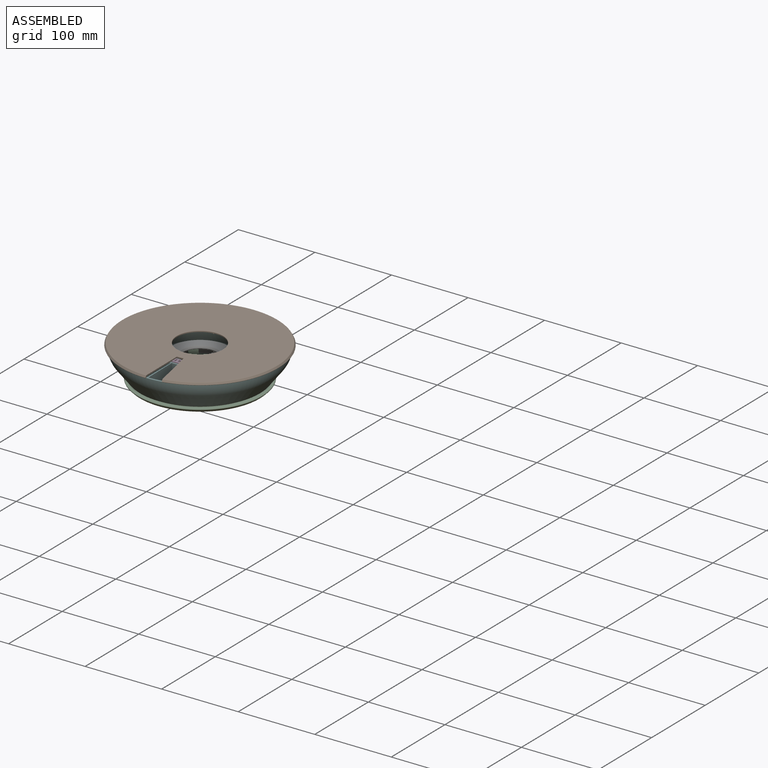
[diagram: assembled view]
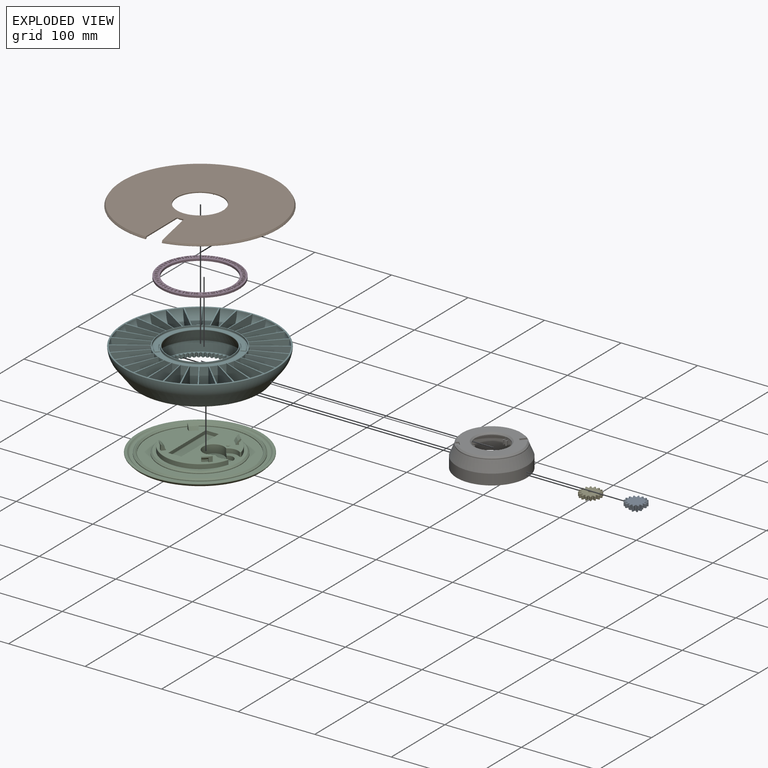
[diagram: exploded view]
FCSTD DOCUMENT  (FreeCAD 1.0R39319 (Git))
Label: smart_medication_box_v3
License: All rights reserved
LicenseURL: https://en.wikipedia.org/wiki/All_rights_reserved
objects: Sketcher::SketchObject×31, PartDesign::Fillet×17, PartDesign::Pad×11, PartDesign::Pocket×10, PartDesign::PolarPattern×10, PartDesign::Revolution×9, App::Link×8, PartDesign::Body×8, PartDesign::Chamfer×3, App::VarSet×3, App::FeaturePython×3, PartDesign::FeaturePython×2, Part::FeaturePython×2, PartDesign::Plane×2, PartDesign::FeatureBase×1, PartDesign::Boolean×1, TechDraw::DrawSVGTemplate×1, TechDraw::DrawViewImage×1, TechDraw::DrawViewClip×1, TechDraw::DrawPage×1, +3 more types
note: 252 computed .brp shape members not serialized (recipe doc carries the construction recipe); baked Part::Feature solids carry a one-line shape summary decoded from their .brp

FEATURE [App::Link] Body006  label="base"
  LinkedObject = -> Body003
FEATURE [App::Link] Body019  label="middle_gear"
  LinkPlacement = pos=(36,9.04337e-05,57) rot=(1,0,0;3.14159rad)
  LinkedObject = -> Body018
  Placement = pos=(36,9.04337e-05,57) rot=(1,0,0;3.14159rad)
FEATURE [PartDesign::FeaturePython] InternalInvoluteGear  # WARN: FeaturePython — macro-defined, semantics opaque (R4)
  AttacherType = Attacher::AttachEngine3D
  Suppressed = false
  addendum_diameter = 94.2
  angular_backlash = 0
  backlash = 0
  clearance = 0.2
  double_helix = false
  head = -0.4
  head_fillet = 0
  height = 5
  helix_angle = 0
  module = 1.5
  num_teeth = 64
  numpoints = 20
  outside_diameter = 106
  pitch_diameter = 96
  pressure_angle = 20
  properties_from_tool = false
  reversed_backlash = false
  root_diameter = 99.6
  root_fillet = 0
  shift = 0
  simple = false
  thickness = 5
  transverse_pitch = 4.71239
  version = 1.3.0
  expr: angular_backlash = backlash / pitch_diameter * 360 ° / pi
  expr: clearance = 0.2
  expr: module = 1.5
  expr: num_teeth = 64
  expr: pressure_angle = 20
FEATURE [PartDesign::FeaturePython] InvoluteGear001  # WARN: FeaturePython — macro-defined, semantics opaque (R4)
  AttacherType = Attacher::AttachEngine3D
  Suppressed = false
  addendum_diameter = 27
  angular_backlash = 0
  axle_hole = false
  axle_holesize = 10
  backlash = 0
  clearance = 0.25
  double_helix = false
  head = 0
  head_fillet = 0
  height = 5
  helix_angle = 0
  module = 1.5
  num_teeth = 16
  numpoints = 20
  offset_hole = false
  offset_holeoffset = 10
  offset_holesize = 10
  pitch_diameter = 24
  pressure_angle = 20
  properties_from_tool = false
  reversed_backlash = false
  root_diameter = 20.25
  root_fillet = 0
  shift = 0
  simple = false
  transverse_pitch = 4.71239
  traverse_module = 1.5
  undercut = false
  version = 1.3.0
  expr: angular_backlash = backlash / pitch_diameter * 360 ° / pi
  expr: module = 1.5
  expr: num_teeth = 16
FEATURE [Part::FeaturePython] InvoluteGear002  # WARN: FeaturePython — macro-defined, semantics opaque (R4)
  AttacherType = Attacher::AttachEngine3D
  Placement = pos=(0,0,46) rot=(0,0,1;0rad)
  addendum_diameter = 27
  angular_backlash = 0
  axle_hole = false
  axle_holesize = 10
  backlash = 0
  clearance = 0.25
  double_helix = false
  head = 0
  head_fillet = 0
  height = 5
  helix_angle = 0
  module = 1.5
  num_teeth = 16
  numpoints = 20
  offset_hole = false
  offset_holeoffset = 10
  offset_holesize = 10
  pitch_diameter = 24
  pressure_angle = 20
  properties_from_tool = false
  reversed_backlash = false
  root_diameter = 20.25
  root_fillet = 0
  shift = 0
  simple = false
  transverse_pitch = 4.71239
  traverse_module = 1.5
  undercut = false
  version = 1.3.0
  expr: angular_backlash = backlash / pitch_diameter * 360 ° / pi
  expr: module = 1.5
FEATURE [PartDesign::FeatureBase] BaseFeature002
  BaseFeature = -> InvoluteGear002
  Suppressed = false
FEATURE [PartDesign::Body] Body017
  AllowCompound = false
  BaseFeature = -> InvoluteGear002
  Group = -> [BaseFeature002]
  Origin = -> Origin028
  Placement = pos=(0,0,46) rot=(0,0,1;0rad)
  Tip = -> BaseFeature002
FEATURE [Part::FeaturePython] InvoluteGear003  # WARN: FeaturePython — macro-defined, semantics opaque (R4)
  AttacherType = Attacher::AttachEngine3D
  Placement = pos=(0,0,51) rot=(0,0,1;0rad)
  addendum_diameter = 15
  angular_backlash = 0
  axle_hole = false
  axle_holesize = 10
  backlash = 0
  clearance = 0.25
  double_helix = false
  head = 0
  head_fillet = 0
  height = 5
  helix_angle = 0
  module = 1.5
  num_teeth = 8
  numpoints = 20
  offset_hole = false
  offset_holeoffset = 10
  offset_holesize = 10
  pitch_diameter = 12
  pressure_angle = 20
  properties_from_tool = false
  reversed_backlash = false
  root_diameter = 8.25
  root_fillet = 0
  shift = 0
  simple = false
  transverse_pitch = 4.71239
  traverse_module = 1.5
  undercut = false
  version = 1.3.0
  expr: angular_backlash = backlash / pitch_diameter * 360 ° / pi
  expr: module = 1.5
  expr: num_teeth = 8
FEATURE [PartDesign::Boolean] Boolean
  Group = -> [InvoluteGear003,InvoluteGear002,Body017]
  Refine = true
  Suppressed = false
  Type = 0
  UsePlacement = true
FEATURE [PartDesign::Fillet] Fillet001
  Base = -> Boolean [Face4]
  BaseFeature = -> Boolean
  Radius = 0.25
  Refine = true
  SupportTransform = false
  Suppressed = false
  UseAllEdges = false
  expr: Radius = 0.25
FEATURE [PartDesign::Fillet] Fillet002
  Base = -> Fillet001 [Face4,Face243]
  BaseFeature = -> Fillet001
  Radius = 0.2
  Refine = true
  SupportTransform = false
  Suppressed = false
  UseAllEdges = false
  expr: Radius = 0.2
FEATURE [Sketcher::SketchObject] Sketch003
  ArcFitTolerance = 1e-06
  AttachmentSupport = -> [Origin006]
  FullyConstrained = true
  MakeInternals = false
  expr: Constraints[0] = 53 * 2
  sketch-geometry (1):
    g0: Circle CenterX=0 CenterY=0 CenterZ=0 NormalX=0 NormalY=0 NormalZ=1 AngleXU=0 Radius=53
  constraints (2):
    c: Diameter(g0) = 106
    c: Coincident(g0,g-1)
FEATURE [PartDesign::Pad] Pad
  Direction = (0,0,1)
  Length = 6
  Length2 = 10
  Profile = -> Sketch003
  ReferenceAxis = -> Sketch003 [N_Axis]
  Refine = true
  Suppressed = false
  Type = 0
  expr: Length = 6
FEATURE [Sketcher::SketchObject] Sketch004
  ArcFitTolerance = 1e-06
  AttachmentSupport = -> [Pad]
  FullyConstrained = true
  MakeInternals = false
  MapMode = 5
  Placement = pos=(0,0,6) rot=(0,0,1;0rad)
  expr: Constraints[0] = 48 * 2 - 2
  sketch-geometry (1):
    g0: Circle CenterX=0 CenterY=0 CenterZ=0 NormalX=0 NormalY=0 NormalZ=1 AngleXU=0 Radius=47
  constraints (2):
    c: Diameter(g0) = 94
    c: Coincident(g0,g-1)
FEATURE [PartDesign::Pad] Pad001
  BaseFeature = -> Pad
  Direction = (0,0,1)
  Length = 6
  Length2 = 10
  Profile = -> Sketch004
  ReferenceAxis = -> Sketch004 [N_Axis]
  Refine = true
  Suppressed = false
  Type = 0
  expr: Length = 6
FEATURE [Sketcher::SketchObject] Sketch005
  ArcFitTolerance = 1e-06
  AttachmentSupport = -> [Pad001]
  ExternalGeometry = -> [Pad001]
  FullyConstrained = true
  MakeInternals = false
  MapMode = 5
  Placement = pos=(0,0,12) rot=(0,0,1;0rad)
  expr: Constraints[0] = 27.5
  expr: Constraints[4] = 11
  sketch-geometry (2):
    g0: Circle CenterX=36 CenterY=0 CenterZ=0 NormalX=0 NormalY=0 NormalZ=1 AngleXU=0 Radius=13.75
    g1: Circle [constr] CenterX=36 CenterY=0 CenterZ=0 NormalX=0 NormalY=0 NormalZ=1 AngleXU=0 Radius=11
  constraints (5):
    c: Diameter(g0) = 27.5
    c: Coincident(g1,g0)
    c: Tangent(g1,g-3)
    c: PointOnObject(g0,g-1)
    c: Distance(g0,g-3) = 11
FEATURE [PartDesign::Pocket] Pocket001
  BaseFeature = -> Pad001
  Direction = (0,0,-1)
  Length = 6
  Length2 = 5
  Profile = -> Sketch005
  ReferenceAxis = -> Sketch005 [N_Axis]
  Refine = true
  Suppressed = false
  Type = 0
  expr: Length = 6
FEATURE [Sketcher::SketchObject] Sketch006
  ArcFitTolerance = 1e-06
  AttachmentSupport = -> [Pocket001]
  ExternalGeometry = -> [Pocket001]
  FullyConstrained = true
  MakeInternals = false
  MapMode = 5
  Placement = pos=(0,0,6) rot=(0,0,1;0rad)
  sketch-geometry (1):
    g0: Circle CenterX=36 CenterY=0 CenterZ=0 NormalX=0 NormalY=0 NormalZ=1 AngleXU=0 Radius=7.6
  constraints (2):
    c: Diameter(g0) = 15.2
    c: Coincident(g0,g-4)
FEATURE [PartDesign::Pocket] Pocket002
  BaseFeature = -> Pocket001
  Direction = (0,0,-1)
  Length = 5
  Length2 = 5
  Profile = -> Sketch006
  ReferenceAxis = -> Sketch006 [N_Axis]
  Refine = true
  Suppressed = false
  Type = 0
FEATURE [Sketcher::SketchObject] Sketch007
  ArcFitTolerance = 1e-06
  AttachmentSupport = -> [Pocket002]
  ExternalGeometry = -> [Pocket002]
  FullyConstrained = true
  MakeInternals = false
  MapMode = 5
  Placement = pos=(0,0,12) rot=(0,0,1;0rad)
  expr: Constraints[0] = 27.5
  expr: Constraints[2] = -3.1
  sketch-geometry (1):
    g0: Circle CenterX=17.75 CenterY=0 CenterZ=0 NormalX=0 NormalY=0 NormalZ=1 AngleXU=0 Radius=13.75
  constraints (3):
    c: Diameter(g0) = 27.5
    c: PointOnObject(g0,g-1)
    c: Distance(g0,g-3) = -3.1
FEATURE [PartDesign::Pocket] Pocket003
  BaseFeature = -> Pocket002
  Direction = (0,0,-1)
  Length = 11
  Length2 = 5
  Profile = -> Sketch007
  ReferenceAxis = -> Sketch007 [N_Axis]
  Refine = true
  Suppressed = false
  Type = 0
  expr: Length = 11
FEATURE [Sketcher::SketchObject] Sketch008
  ArcFitTolerance = 1e-06
  AttachmentSupport = -> [InvoluteGear001]
  FullyConstrained = true
  MakeInternals = false
  MapMode = 5
  Placement = pos=(0,0,5) rot=(0,0,1;0rad)
  expr: Constraints[11] = 3.1
  sketch-geometry (4):
    g0: ArcOfCircle CenterX=0 CenterY=0 CenterZ=0 NormalX=0 NormalY=0 NormalZ=1 AngleXU=0 Radius=2.5 StartAngle=2.47285 EndAngle=3.81034
    g1: ArcOfCircle CenterX=0 CenterY=0 CenterZ=0 NormalX=0 NormalY=0 NormalZ=1 AngleXU=0 Radius=2.5 StartAngle=5.61444 EndAngle=6.95193
    g2: LineSegment StartX=-1.9615 StartY=1.55 StartZ=0 EndX=1.9615 EndY=1.55 EndZ=0
    g3: LineSegment StartX=1.9615 StartY=-1.55 StartZ=0 EndX=-1.9615 EndY=-1.55 EndZ=0
  constraints (12):
    c: Coincident(g0,g-1)
    c: Coincident(g0,g1)
    c: Diameter(g0) = 5
    c: Equal(g1,g0)
    c: Coincident(g2,g0)
    c: Coincident(g2,g1)
    c: Coincident(g3,g1)
    c: Coincident(g3,g0)
    c: Parallel(g3,g2)
    c: Parallel(g-1,g2)
    c: Equal(g2,g3)
    c: Distance(g3,g2) = 3.1
FEATURE [PartDesign::Pocket] Pocket004
  BaseFeature = -> InvoluteGear001
  Direction = (0,0,-1)
  Length = 5
  Length2 = 5
  Profile = -> Sketch008
  ReferenceAxis = -> Sketch008 [N_Axis]
  Refine = true
  Suppressed = false
  Type = 0
FEATURE [PartDesign::Fillet] Fillet012
  Base = -> Pocket004 [Face5,Face4]
  BaseFeature = -> Pocket004
  Radius = 0.25
  Refine = true
  SupportTransform = false
  Suppressed = false
  UseAllEdges = false
  expr: Radius = 0.25
FEATURE [PartDesign::Body] Body005  label="motor_gear001"
  AllowCompound = false
  Group = -> [InvoluteGear001,Sketch008,Pocket004,Fillet012]
  Origin = -> Origin010
  Placement = pos=(0,0,75) rot=(0,0,1;0rad)
  Tip = -> Fillet012
FEATURE [Sketcher::SketchObject] Sketch009
  ArcFitTolerance = 1e-06
  FullyConstrained = false
  MakeInternals = false
  MapMode = 5
  Placement = pos=(53,0,0) rot=(1,0,0;1.5708rad)
  expr: Constraints[0] = 23
  sketch-geometry (13):
    g0: LineSegment StartX=0 StartY=3 StartZ=0 EndX=21.9645 EndY=3 EndZ=0
    g1: LineSegment StartX=23.7322 StartY=3.73223 StartZ=0 EndX=24.7071 EndY=4.70711 EndZ=0
    g2: LineSegment StartX=25.4142 StartY=5 StartZ=0 EndX=27.4142 EndY=5 EndZ=0
    g3: LineSegment StartX=28.1213 StartY=3.29289 StartZ=0 EndX=25.5607 EndY=0.732233 EndZ=0
    g4: LineSegment StartX=0 StartY=0 StartZ=0 EndX=23.7929 EndY=0 EndZ=0
    g5: ArcOfCircle CenterX=27.4142 CenterY=4 CenterZ=0 NormalX=0 NormalY=0 NormalZ=1 AngleXU=0 Radius=1 StartAngle=5.49779 EndAngle=7.85398
    g6: ArcOfCircle CenterX=25.4142 CenterY=4 CenterZ=0 NormalX=0 NormalY=0 NormalZ=1 AngleXU=0 Radius=1 StartAngle=1.5708 EndAngle=2.35619
    g7: GeomPoint [constr] X=25 Y=5 Z=0
    g8: ArcOfCircle CenterX=21.9645 CenterY=5.5 CenterZ=0 NormalX=0 NormalY=0 NormalZ=1 AngleXU=0 Radius=2.5 StartAngle=4.71239 EndAngle=5.49779
    g9: GeomPoint [constr] X=23 Y=3 Z=0
    g10: ArcOfCircle CenterX=23.7929 CenterY=2.5 CenterZ=0 NormalX=0 NormalY=0 NormalZ=1 AngleXU=0 Radius=2.5 StartAngle=4.71239 EndAngle=5.49779
    g11: GeomPoint [constr] X=24.8284 Y=0 Z=0
    g12: LineSegment StartX=0 StartY=0 StartZ=0 EndX=0 EndY=3 EndZ=0
  constraints (29):
    c: DistanceX(g0,g9) = 23
    c: PointOnObject(g11,g-1)
    c: Parallel(g1,g3)
    c: Parallel(g0,g4)
    c: Parallel(g2,g0)
    c: Tangent(g2,g5) = 1.5708
    c: PointOnObject(g7,g1)
    c: PointOnObject(g7,g2)
    c: Tangent(g1,g6) = 1.5708
    c: Tangent(g2,g6) = 1.5708
    c: PointOnObject(g9,g1)
    c: PointOnObject(g9,g0)
    c: Tangent(g1,g8) = -1.5708
    c: Tangent(g0,g8) = -1.5708
    c: PointOnObject(g11,g3)
    c: PointOnObject(g11,g4)
    c: Tangent(g3,g10) = 1.5708
    c: Tangent(g4,g10) = -1.5708
    c: Equal(g5,g6)
    c: Radius(g6) = 1
    c: Equal(g8,g10)
    c: Radius(g10) = 2.5
    c: Tangent(g3,g5) = 1.5708
    c: Angle(g-1,g3) = 0.785398
    c: DistanceX(g2,g2) = 2
    c: Coincident(g12,g4)
    c: Coincident(g12,g0)
    c: Vertical(g12)
    c: DistanceY(g12,g12) = 3
FEATURE [PartDesign::Revolution] Revolution
  Angle = 360
  Angle2 = 60
  Axis = (1e-16,1e-16,1)
  Base = (0,0,0)
  BaseFeature = -> Pocket003
  Profile = -> Sketch009
  ReferenceAxis = -> Z_Axis003
  Refine = true
  Reversed = true
  Suppressed = false
  Type = 0
FEATURE [PartDesign::Fillet] Fillet
  Base = -> Revolution [Edge24,Edge22,Edge18,Edge25,Edge20,Edge16]
  BaseFeature = -> Revolution
  Radius = 1
  Refine = true
  SupportTransform = false
  Suppressed = false
  UseAllEdges = false
FEATURE [Sketcher::SketchObject] Sketch010
  ArcFitTolerance = 1e-06
  ExternalGeometry = -> [InternalInvoluteGear]
  FullyConstrained = false
  MakeInternals = false
  MapMode = 5
  Placement = pos=(53,0,0) rot=(1,0,0;1.5708rad)
  expr: Constraints[10] = VarSet.outer_wall_thickness
  expr: Constraints[11] = VarSet.outer_wall_thickness
  expr: Constraints[14] = VarSet.outer_wall_thickness
  expr: Constraints[17] = VarSet.fillet_oouter_gear
  expr: Constraints[2] = 5
  expr: Constraints[34] = VarSet.outer_wall_thickness
  expr: Constraints[36] = VarSet.outer_ring_height
  expr: Constraints[37] = VarSet.fillet_oouter_gear
  expr: Constraints[38] = 30
  expr: Constraints[45] = VarSet.fillet_oouter_gear
  expr: Constraints[50] = 50
  expr: Constraints[52] = 10
  expr: Constraints[6] = 25
  expr: Constraints[9] = VarSet.outer_wall_thickness
  sketch-geometry (28):
    g0: LineSegment StartX=0 StartY=0 StartZ=0 EndX=0 EndY=5 EndZ=0
    g1: LineSegment StartX=0 StartY=0 StartZ=0 EndX=24.1018 EndY=0 EndZ=0
    g2: LineSegment StartX=25.5967 StartY=0.67138 StartZ=0 EndX=34.1854 EndY=10.3351 EndZ=0
    g3: LineSegment StartX=24.6985 StartY=2.67138 StartZ=0 EndX=32.6905 EndY=11.6638 EndZ=0
    g4: LineSegment StartX=9.57963 StartY=2 StartZ=0 EndX=23.2036 EndY=2 EndZ=0
    g5: LineSegment StartX=0 StartY=5 StartZ=0 EndX=-2 EndY=5 EndZ=0
    g6: LineSegment StartX=-0.122418 StartY=35.2036 StartZ=0 EndX=0 EndY=7.67973 EndZ=0
    g7: LineSegment StartX=8.57963 StartY=2.26795 StartZ=0 EndX=0.399992 EndY=6.99046 EndZ=0
    g8: ArcOfCircle CenterX=0.799992 CenterY=7.68328 CenterZ=0 NormalX=0 NormalY=0 NormalZ=1 AngleXU=0 Radius=0.8 StartAngle=3.14604 EndAngle=4.18879
    g9: ArcOfCircle CenterX=9.57963 CenterY=4 CenterZ=0 NormalX=0 NormalY=0 NormalZ=1 AngleXU=0 Radius=2 StartAngle=4.18879 EndAngle=4.71239
    g10: GeomPoint [constr] X=9.04373 Y=2 Z=0
    g11: ArcOfCircle CenterX=23.2036 CenterY=4 CenterZ=0 NormalX=0 NormalY=0 NormalZ=1 AngleXU=0 Radius=2 StartAngle=4.71239 EndAngle=5.55662
    g12: GeomPoint [constr] X=24.1018 Y=2 Z=0
    g13: ArcOfCircle CenterX=24.1018 CenterY=2 CenterZ=0 NormalX=0 NormalY=0 NormalZ=1 AngleXU=0 Radius=2 StartAngle=4.71239 EndAngle=5.55662
    g14: GeomPoint [constr] X=25 Y=0 Z=0
    g15: GeomPoint [constr] X=29 Y=4.50065 Z=0
    g16: GeomPoint [constr] X=27 Y=5.26097 Z=0
    g17: ArcOfCircle CenterX=-0.92241 CenterY=35.2 CenterZ=0 NormalX=0 NormalY=0 NormalZ=1 AngleXU=0 Radius=0.8 StartAngle=0.00444768 EndAngle=1.5708
    g18: LineSegment StartX=-10.9224 StartY=36 StartZ=0 EndX=-5.92241 EndY=36 EndZ=0
    g19: ArcOfCircle CenterX=-4.68233 CenterY=44.8792 CenterZ=0 NormalX=0 NormalY=0 NormalZ=1 AngleXU=0 Radius=52 StartAngle=5.55662 EndAngle=6.09299
    g20: ArcOfCircle CenterX=-4.68233 CenterY=44.8792 CenterZ=0 NormalX=0 NormalY=0 NormalZ=1 AngleXU=0 Radius=50 StartAngle=5.55662 EndAngle=6.09148
    g21: ArcOfCircle CenterX=45.187 CenterY=35.2 CenterZ=0 NormalX=0 NormalY=0 NormalZ=1 AngleXU=0 Radius=0.8 StartAngle=1.5708 EndAngle=2.94988
    g22: LineSegment StartX=45.5944 StartY=36 StartZ=0 EndX=45.187 EndY=36 EndZ=0
    g23: ArcOfCircle CenterX=45.5944 CenterY=35.2 CenterZ=0 NormalX=0 NormalY=0 NormalZ=1 AngleXU=0 Radius=0.8 StartAngle=6.09299 EndAngle=7.85398
    g24: ArcOfCircle CenterX=-10.9224 CenterY=35.2 CenterZ=0 NormalX=0 NormalY=0 NormalZ=1 AngleXU=0 Radius=0.8 StartAngle=1.5708 EndAngle=3.66964
    g25: LineSegment StartX=-11.6134 StartY=34.7969 StartZ=0 EndX=-2.05968 EndY=18.418 EndZ=0
    g26: LineSegment StartX=-2.05968 StartY=18.418 StartZ=0 EndX=-2 EndY=5 EndZ=0
    g27: LineSegment StartX=-5.92241 StartY=36 StartZ=0 EndX=-0.92241 EndY=36 EndZ=0
  constraints (68):
    c: Coincident(g0,g-1)
    c: PointOnObject(g0,g-2)
    c: DistanceY(g0,g0) = 5
    c: Coincident(g1,g0)
    c: PointOnObject(g14,g-1)
    c: Parallel(g3,g2)
    c: DistanceX(g1,g14) = 25
    c: DistanceX(g14,g15) = 4
    c: Parallel(g4,g1)
    c: Distance(g1,g4) = 2
    c: DistanceX(g16,g15) = 2
    c: Distance(g14,g3) = 2
    c: Coincident(g5,g0)
    c: Horizontal(g5)
    c: DistanceX(g5,g5) = 2
    c: Tangent(g8,g7) = 1.5708
    c: Tangent(g8,g6) = -1.5708
    c: Radius(g8) = 0.8
    c: PointOnObject(g6,g-2)
    c: PointOnObject(g10,g7)
    c: PointOnObject(g10,g4)
    c: Tangent(g7,g9) = 1.5708
    c: Tangent(g4,g9) = -1.5708
    c: PointOnObject(g12,g4)
    c: PointOnObject(g12,g3)
    c: Tangent(g4,g11) = -1.5708
    c: Tangent(g3,g11) = -1.5708
    c: PointOnObject(g14,g1)
    c: PointOnObject(g14,g2)
    c: Tangent(g1,g13) = -1.5708
    c: Tangent(g2,g13) = -1.5708
    c: PointOnObject(g15,g2)
    c: PointOnObject(g16,g3)
    c: Equal(g13,g11)
    c: Distance(g0,g8) = 2
    c: Tangent(g17,g6) = 1.5708
    c: Distance(g18,g-1) = 36
    c: Radius(g17) = 0.8
    c: Angle(g7,g1) = 0.523599
    c: Equal(g11,g9)
    c: Coincident(g20,g19)
    c: Tangent(g20,g3) = -1.5708
    c: Tangent(g19,g2) = -1.5708
    c: Tangent(g22,g21) = -1.5708
    c: Tangent(g21,g20) = 1.5708
    c: Radius(g21) = 0.8
    c: Tangent(g23,g22) = -1.5708
    c: Tangent(g23,g19) = -1.5708
    c: Equal(g23,g21)
    c: Parallel(g22,g-1)
    c: Radius(g20) = 50
    c: Radius(g11) = 2
    c: DistanceX(g18,g27) = 10
    c: Tangent(g24,g18) = 1.5708
    c: Equal(g24,g17)
    c: Coincident(g26,g25)
    c: Coincident(g26,g5)
    c: Parallel(g26,g6)
    c: Tangent(g25,g24) = -1.5708
    c: Perpendicular(g-2,g18)
    c: Perpendicular(g-2,g27)
    c: Coincident(g18,g27)
    c: Tangent(g27,g17) = 1.5708
    c: Equal(g27,g18)
    c: Angle(g26,g25) = 0.523599
    c: Vertical(g18,g-3)
    c: Distance(g-1,g22) = 36
    c: DistanceX(g-1,g19) = 46.38
FEATURE [PartDesign::Revolution] Revolution001
  Angle = 360
  Angle2 = 60
  Axis = (1e-16,1e-16,1)
  Base = (0,0,0)
  BaseFeature = -> InternalInvoluteGear
  Profile = -> Sketch010
  ReferenceAxis = -> Z_Axis013
  Refine = true
  Reversed = true
  Suppressed = false
  Type = 0
FEATURE [Sketcher::SketchObject] Sketch011
  ArcFitTolerance = 1e-06
  ExternalGeometry = -> [Revolution001]
  FullyConstrained = true
  MakeInternals = false
  MapMode = 5
  Placement = pos=(53,0,0) rot=(1,0,0;1.5708rad)
  sketch-geometry (2):
    g0: LineSegment StartX=-0.92241 StartY=36 StartZ=0 EndX=45.187 EndY=36 EndZ=0
    g1: LineSegment StartX=9.57963 StartY=2 StartZ=0 EndX=23.2036 EndY=2 EndZ=0
  constraints (4):
    c: Coincident(g0,g-11)
    c: Coincident(g0,g-7)
    c: Tangent(g1,g-6) = -1.5708
    c: Coincident(g1,g-8)
FEATURE [PartDesign::Revolution] Revolution002
  Angle = 1
  Angle2 = 60
  Axis = (1e-16,1e-16,1)
  Base = (0,0,0)
  BaseFeature = -> Revolution001
  Midplane = true
  Profile = -> Sketch011
  ReferenceAxis = -> Z_Axis013
  Refine = true
  Suppressed = false
  Type = 0
  expr: Angle = 1
FEATURE [PartDesign::PolarPattern] PolarPattern
  Angle = 360
  Axis = -> Z_Axis013
  BaseFeature = -> Revolution002
  Mode = 0
  Occurrences = 32
  Offset = 120
  Originals = -> [Revolution002]
  Refine = true
  Suppressed = false
  TransformMode = 0
  expr: Occurrences = 32
FEATURE [Sketcher::SketchObject] Sketch012
  ArcFitTolerance = 1e-06
  AttacherType = Attacher::AttachEngine3D
  AttachmentSupport = -> [XY_Plane017]
  FullyConstrained = true
  MakeInternals = false
  MapMode = 5
  expr: Constraints[0] = 43
  expr: Constraints[2] = 80
  sketch-geometry (3):
    g0: Circle CenterX=0 CenterY=0 CenterZ=0 NormalX=0 NormalY=0 NormalZ=1 AngleXU=0 Radius=21.5
    g1: Circle CenterX=0 CenterY=0 CenterZ=0 NormalX=0 NormalY=0 NormalZ=1 AngleXU=0 Radius=40
    g2: Circle CenterX=0 CenterY=0 CenterZ=0 NormalX=0 NormalY=0 NormalZ=1 AngleXU=0 Radius=38.5
  constraints (6):
    c: Diameter(g0) = 43
    c: Coincident(g0,g-1)
    c: Diameter(g1) = 80
    c: Coincident(g1,g0)
    c: Coincident(g2,g0)
    c: Diameter(g2) = 77
FEATURE [PartDesign::Pad] Pad005
  Direction = (0,0,1)
  Length = 3
  Length2 = 10
  Profile = -> Sketch012 [Edge2,Edge1]
  ReferenceAxis = -> Sketch012 [N_Axis]
  Refine = true
  Suppressed = false
  Type = 0
  expr: Length = 3
FEATURE [Sketcher::SketchObject] Sketch015
  ArcFitTolerance = 1e-06
  AttachmentSupport = -> [PolarPattern]
  ExternalGeometry = -> [PolarPattern]
  FullyConstrained = true
  MakeInternals = false
  MapMode = 5
  Placement = pos=(4e-15,4e-15,36) rot=(0,0,1;0rad)
  expr: Constraints[13] = 9
  sketch-geometry (5):
    g0: Circle [constr] CenterX=0 CenterY=0 CenterZ=0 NormalX=0 NormalY=0 NormalZ=1 AngleXU=0 Radius=52.0776
    g1: Circle CenterX=0 CenterY=0 CenterZ=0 NormalX=0 NormalY=0 NormalZ=1 AngleXU=0 Radius=42.5776
    g2: Circle CenterX=0 CenterY=0 CenterZ=0 NormalX=0 NormalY=0 NormalZ=1 AngleXU=0 Radius=51.5776
    g3: LineSegment [constr] StartX=-42.5776 StartY=0 StartZ=0 EndX=-42.0776 EndY=0 EndZ=0
    g4: LineSegment [constr] StartX=-52.0776 StartY=0 StartZ=0 EndX=-51.5776 EndY=0 EndZ=0
  constraints (14):
    c: Coincident(g0,g-3)
    c: PointOnObject(g-4,g0)
    c: Coincident(g1,g0)
    c: Coincident(g2,g0)
    c: PointOnObject(g3,g1)
    c: PointOnObject(g3,g-3)
    c: PointOnObject(g3,g-1)
    c: PointOnObject(g3,g-1)
    c: PointOnObject(g4,g0)
    c: PointOnObject(g4,g2)
    c: PointOnObject(g4,g-1)
    c: PointOnObject(g4,g-1)
    c: Equal(g4,g3)
    c: Distance(g2,g1) = 9
FEATURE [PartDesign::Pocket] Pocket005
  BaseFeature = -> PolarPattern
  Direction = (0,0,-1)
  Length = 3
  Length2 = 5
  Profile = -> Sketch015
  ReferenceAxis = -> Sketch015 [N_Axis]
  Refine = true
  Suppressed = false
  Type = 0
  expr: Length = 3
FEATURE [PartDesign::Fillet] Fillet003
  Base = -> Pocket005 [Edge312,Edge949]
  BaseFeature = -> Pocket005
  Radius = 1
  Refine = true
  SupportTransform = false
  Suppressed = false
  UseAllEdges = false
  expr: Radius = 1
FEATURE [Sketcher::SketchObject] Sketch016
  ArcFitTolerance = 1e-06
  AttachmentSupport = -> [Fillet003]
  FullyConstrained = false
  MakeInternals = false
  MapMode = 5
  Placement = pos=(0,0,33) rot=(0,0,1;0rad)
  sketch-geometry (8):
    g0: ArcOfCircle CenterX=4e-15 CenterY=4e-15 CenterZ=0 NormalX=0 NormalY=0 NormalZ=1 AngleXU=0 Radius=44.0776 StartAngle=1.01451 EndAngle=1.42895
    g1: ArcOfCircle CenterX=4e-15 CenterY=4e-15 CenterZ=0 NormalX=0 NormalY=0 NormalZ=1 AngleXU=0 Radius=50.0776 StartAngle=1.01451 EndAngle=1.42895
    g2: LineSegment StartX=6.23147 StartY=43.6349 StartZ=0 EndX=7.07972 EndY=49.5746 EndZ=0
    g3: LineSegment StartX=23.2744 StartY=37.4318 StartZ=0 EndX=26.4426 EndY=42.5271 EndZ=0
    g4: LineSegment [constr] StartX=23.2744 StartY=37.4318 StartZ=0 EndX=23.0104 EndY=37.0071 EndZ=0
    g5: LineSegment [constr] StartX=26.4426 StartY=42.5271 StartZ=0 EndX=26.7066 EndY=42.9517 EndZ=0
    g6: LineSegment [constr] StartX=4e-15 StartY=4e-15 StartZ=0 EndX=-40.9495 EndY=14.9044 EndZ=0
    g7: LineSegment [constr] StartX=4e-15 StartY=4e-15 StartZ=0 EndX=14.9044 EndY=40.9495 EndZ=0
  constraints (22):
    c: Coincident(g0,g-4)
    c: Coincident(g1,g0)
    c: Coincident(g2,g0)
    c: Coincident(g2,g1)
    c: Coincident(g3,g0)
    c: Coincident(g3,g1)
    c: Equal(g2,g3)
    c: Perpendicular(g0,g2)
    c: Coincident(g4,g0)
    c: PointOnObject(g4,g-4)
    c: Coincident(g5,g1)
    c: PointOnObject(g5,g-3)
    c: Parallel(g4,g3)
    c: Parallel(g3,g5)
    c: Equal(g5,g4)
    c: Distance(g3,g3) = 6
    c: Coincident(g6,g0)
    c: Angle(g6,g-1) = 0.349066
    c: PointOnObject(g6,g-4)
    c: Coincident(g7,g0)
    c: Perpendicular(g6,g7)
    c: Equal(g7,g6)
FEATURE [PartDesign::Pad] Pad004
  BaseFeature = -> Fillet003
  Direction = (0,0,1)
  Length = 1.5
  Length2 = 10
  Profile = -> Sketch016
  ReferenceAxis = -> Sketch016 [N_Axis]
  Refine = true
  Suppressed = false
  Type = 0
  expr: Length = 1.5
FEATURE [PartDesign::PolarPattern] PolarPattern002
  Angle = 360
  Axis = -> Sketch016 [N_Axis]
  BaseFeature = -> Pad004
  Mode = 0
  Occurrences = 2
  Offset = 120
  Originals = -> [Pad004]
  Refine = true
  Suppressed = false
  TransformMode = 0
FEATURE [PartDesign::Fillet] Fillet004
  Base = -> PolarPattern002 [Face177,Face175]
  BaseFeature = -> PolarPattern002
  Radius = 1
  Refine = true
  SupportTransform = false
  Suppressed = false
  UseAllEdges = false
FEATURE [PartDesign::Body] Body016  label="outer_gear"
  AllowCompound = false
  Group = -> [InternalInvoluteGear,Sketch010,Revolution001,Sketch011,Revolution002,PolarPattern,Sketch015,Pocket005,Fillet003,Sketch016,Pad004,PolarPattern002,Fillet004]
  Origin = -> Origin026
  Placement = pos=(0,0,41) rot=(0,0,1;0rad)
  Tip = -> Fillet004
FEATURE [Sketcher::SketchObject] Sketch017
  ArcFitTolerance = 1e-06
  FullyConstrained = true
  MakeInternals = false
  MapMode = 5
  Placement = pos=(40,0,0) rot=(1,0,0;1.5708rad)
  expr: Constraints[3] = 14
  expr: Constraints[4] = 28
  sketch-geometry (6):
    g0: LineSegment StartX=5.79 StartY=-28 StartZ=0 EndX=5.79 EndY=-14 EndZ=0
    g1: LineSegment StartX=5.79 StartY=-14 StartZ=0 EndX=0 EndY=0 EndZ=0
    g2: LineSegment StartX=0 StartY=0 StartZ=0 EndX=-1.5 EndY=0 EndZ=0
    g3: LineSegment StartX=-1.5 StartY=0 StartZ=0 EndX=4.29 EndY=-14 EndZ=0
    g4: LineSegment StartX=4.29 StartY=-14 StartZ=0 EndX=4.29 EndY=-28 EndZ=0
    g5: LineSegment StartX=4.29 StartY=-28 StartZ=0 EndX=5.79 EndY=-28 EndZ=0
  constraints (17):
    c: Vertical(g0)
    c: Coincident(g1,g0)
    c: Coincident(g1,g-1)
    c: DistanceY(g0,g0) = 14
    c: DistanceY(g0,g1) = 28
    c: Coincident(g2,g1)
    c: PointOnObject(g2,g-1)
    c: Coincident(g2,g3)
    c: Coincident(g3,g4)
    c: Vertical(g4)
    c: Coincident(g4,g5)
    c: Coincident(g5,g0)
    c: Perpendicular(g4,g5)
    c: Equal(g3,g1)
    c: Parallel(g3,g1)
    c: DistanceX(g5,g5) = 1.5
    c: Distance(g-2,g0) = 5.79
FEATURE [PartDesign::Revolution] Revolution003
  Angle = 360
  Angle2 = 60
  Axis = (1e-16,1e-16,1)
  Base = (0,0,0)
  BaseFeature = -> Pad005
  Profile = -> Sketch017
  ReferenceAxis = -> Z_Axis017
  Refine = true
  Reversed = true
  Suppressed = false
  Type = 0
FEATURE [PartDesign::Chamfer] Chamfer
  Angle = 45
  Base = -> Revolution003 [Edge13,Edge10]
  BaseFeature = -> Revolution003
  ChamferType = 0
  FlipDirection = false
  Refine = true
  Size = 2
  Size2 = 1
  SupportTransform = false
  Suppressed = false
  UseAllEdges = false
FEATURE [Sketcher::SketchObject] Sketch019
  ArcFitTolerance = 1e-06
  AttachmentSupport = -> [Fillet]
  FullyConstrained = true
  MakeInternals = false
  MapMode = 5
  Placement = pos=(0,0,12) rot=(0,0,1;0rad)
  sketch-geometry (1):
    g0: Circle CenterX=0 CenterY=0 CenterZ=0 NormalX=0 NormalY=0 NormalZ=1 AngleXU=0 Radius=44
  constraints (2):
    c: Diameter(g0) = 88
    c: Coincident(g0,g-1)
FEATURE [Sketcher::SketchObject] Sketch020
  ArcFitTolerance = 1e-06
  FullyConstrained = true
  MakeInternals = false
  MapMode = 5
  Placement = pos=(44,0,12) rot=(1,0,0;1.5708rad)
  sketch-geometry (9):
    g0: LineSegment StartX=-2.19203 StartY=0 StartZ=0 EndX=-2.19203 EndY=3.1 EndZ=0
    g1: LineSegment StartX=-2.19203 StartY=3.1 StartZ=0 EndX=0 EndY=5.29203 EndZ=0
    g2: LineSegment StartX=0 StartY=5.29203 StartZ=0 EndX=0 EndY=7.79203 EndZ=0
    g3: LineSegment StartX=-5.9535 StartY=0 StartZ=0 EndX=-2.19203 EndY=0 EndZ=0
    g4: LineSegment StartX=0 StartY=7.79203 StartZ=0 EndX=-3.44203 EndY=4.35 EndZ=0
    g5: LineSegment StartX=-3.44203 StartY=4.35 StartZ=0 EndX=-5.9535 EndY=0 EndZ=0
    g6: LineSegment [constr] StartX=-3.44203 StartY=4.35 StartZ=0 EndX=-2.19203 EndY=3.1 EndZ=0
    g7: LineSegment StartX=-2.19203 StartY=0 StartZ=0 EndX=0 EndY=0 EndZ=0
    g8: LineSegment StartX=0 StartY=0 StartZ=0 EndX=0 EndY=5.29203 EndZ=0
  constraints (24):
    c: PointOnObject(g0,g-1)
    c: Vertical(g0)
    c: Coincident(g0,g1)
    c: PointOnObject(g1,g-2)
    c: Coincident(g1,g2)
    c: Coincident(g3,g0)
    c: PointOnObject(g3,g-1)
    c: PointOnObject(g2,g-2)
    c: Angle(g1,g0) = 0.785398
    c: DistanceY(g0,g0) = 3.1
    c: Equal(g1,g0)
    c: DistanceY(g2,g2) = 2.5
    c: Coincident(g2,g4)
    c: Coincident(g4,g5)
    c: Coincident(g3,g5)
    c: Angle(g3,g5) = 1.0472
    c: Parallel(g4,g1)
    c: Coincident(g6,g4)
    c: Coincident(g6,g0)
    c: Perpendicular(g4,g6)
    c: Coincident(g7,g0)
    c: Coincident(g7,g-1)
    c: Coincident(g8,g7)
    c: Coincident(g8,g1)
FEATURE [PartDesign::Revolution] Revolution005
  Angle = 323
  Angle2 = 47
  Axis = (1e-16,1e-16,1)
  Base = (0,0,0)
  BaseFeature = -> Fillet
  Profile = -> Sketch020 [Edge4,Edge5,Edge2,Edge1,Edge3,Edge6]
  ReferenceAxis = -> Z_Axis003
  Refine = true
  Reversed = true
  Suppressed = false
  Type = 4
  expr: Angle = 323
  expr: Angle2 = 47
FEATURE [PartDesign::Revolution] Revolution006
  Angle = 313
  Angle2 = 53
  Axis = (1e-16,1e-16,1)
  Base = (0,0,0)
  BaseFeature = -> Revolution005
  Profile = -> Sketch020 [Edge8,Edge3,Edge4,Edge5,Edge6,Edge7]
  ReferenceAxis = -> Z_Axis003
  Refine = true
  Reversed = true
  Suppressed = false
  Type = 4
  expr: Angle = 313
  expr: Angle2 = 53
FEATURE [PartDesign::PolarPattern] PolarPattern004
  Angle = 360
  Axis = -> Z_Axis003
  BaseFeature = -> Revolution006
  Mode = 0
  Occurrences = 4
  Offset = 120
  Originals = -> [Revolution005,Revolution006]
  Refine = true
  Suppressed = false
  TransformMode = 0
  expr: Occurrences = 4
FEATURE [Sketcher::SketchObject] Sketch021
  ArcFitTolerance = 1e-06
  AttachmentSupport = -> [XY_Plane018]
  FullyConstrained = true
  MakeInternals = false
  MapMode = 2
  expr: Constraints[2] = 42.75 * 2
  expr: Constraints[3] = 51 * 2
  sketch-geometry (2):
    g0: Circle CenterX=0 CenterY=0 CenterZ=0 NormalX=0 NormalY=0 NormalZ=1 AngleXU=0 Radius=42.75
    g1: Circle CenterX=0 CenterY=0 CenterZ=0 NormalX=0 NormalY=0 NormalZ=1 AngleXU=0 Radius=51
  constraints (4):
    c: Coincident(g0,g-1)
    c: Coincident(g1,g0)
    c: Diameter(g0) = 85.5
    c: Diameter(g1) = 102
FEATURE [PartDesign::Pad] Pad006
  Direction = (0,0,1)
  Length = 3
  Length2 = 10
  Profile = -> Sketch021
  ReferenceAxis = -> Sketch021 [N_Axis]
  Refine = true
  Suppressed = false
  Type = 0
  expr: Length = 3
FEATURE [Sketcher::SketchObject] Sketch022
  ArcFitTolerance = 1e-06
  AttachmentSupport = -> [Pad006]
  FullyConstrained = false
  MakeInternals = false
  MapMode = 5
  Placement = pos=(0,0,3) rot=(0,0,1;0rad)
  sketch-geometry (4):
    g0: ArcOfCircle CenterX=0 CenterY=0 CenterZ=0 NormalX=0 NormalY=0 NormalZ=1 AngleXU=0 Radius=44.0776 StartAngle=1.00579 EndAngle=1.42022
    g1: ArcOfCircle CenterX=0 CenterY=0 CenterZ=0 NormalX=0 NormalY=0 NormalZ=1 AngleXU=0 Radius=50.0776 StartAngle=1.00579 EndAngle=1.42022
    g2: LineSegment StartX=6.61199 StartY=43.5789 StartZ=0 EndX=7.51204 EndY=49.511 EndZ=0
    g3: LineSegment StartX=23.6002 StartY=37.2272 StartZ=0 EndX=26.8127 EndY=42.2947 EndZ=0
  constraints (8):
    c: Coincident(g1,g0)
    c: Coincident(g2,g0)
    c: Coincident(g2,g1)
    c: Coincident(g3,g0)
    c: Coincident(g3,g1)
    c: Equal(g2,g3)
    c: Perpendicular(g0,g2)
    c: Distance(g3,g3) = 6
FEATURE [PartDesign::Pocket] Pocket006
  BaseFeature = -> Pad006
  Direction = (0,0,-1)
  Length = 1.5
  Length2 = 5
  Profile = -> Sketch022
  ReferenceAxis = -> Sketch022 [N_Axis]
  Refine = true
  Suppressed = false
  Type = 0
  expr: Length = 1.5
FEATURE [PartDesign::PolarPattern] PolarPattern005
  Angle = 360
  Axis = -> Sketch022 [N_Axis]
  BaseFeature = -> Pocket006
  Mode = 0
  Occurrences = 2
  Offset = 120
  Originals = -> [Pocket006]
  Refine = true
  Suppressed = false
  TransformMode = 0
FEATURE [PartDesign::Fillet] Fillet010
  Base = -> PolarPattern005 [Face2]
  BaseFeature = -> PolarPattern005
  Radius = 0.3
  Refine = true
  SupportTransform = false
  Suppressed = false
  UseAllEdges = false
  expr: Radius = 0.3
FEATURE [PartDesign::Fillet] Fillet011
  Base = -> Fillet010 [Face3]
  BaseFeature = -> Fillet010
  Radius = 0.4
  Refine = true
  SupportTransform = false
  Suppressed = false
  UseAllEdges = false
  expr: Radius = 0.4
FEATURE [Sketcher::SketchObject] Sketch023
  ArcFitTolerance = 1e-06
  AttachmentSupport = -> [Fillet011]
  FullyConstrained = false
  MakeInternals = false
  MapMode = 5
  Placement = pos=(0,0,0) rot=(1,0,0;3.14159rad)
  sketch-geometry (1190):
    g0: BSplineCurve PolesCount=2 KnotsCount=2 Degree=1 IsPeriodic=0
    g1: BSplineCurve PolesCount=2 KnotsCount=2 Degree=1 IsPeriodic=0
    g2: BSplineCurve PolesCount=2 KnotsCount=2 Degree=1 IsPeriodic=0
    g3: BSplineCurve PolesCount=2 KnotsCount=2 Degree=1 IsPeriodic=0
    g4: BSplineCurve PolesCount=2 KnotsCount=2 Degree=1 IsPeriodic=0
    g5: BSplineCurve PolesCount=2 KnotsCount=2 Degree=1 IsPeriodic=0
    g6: BSplineCurve PolesCount=2 KnotsCount=2 Degree=1 IsPeriodic=0
    g7: BSplineCurve PolesCount=2 KnotsCount=2 Degree=1 IsPeriodic=0
    g8: BSplineCurve PolesCount=2 KnotsCount=2 Degree=1 IsPeriodic=0
    g9: BSplineCurve PolesCount=2 KnotsCount=2 Degree=1 IsPeriodic=0
    g10: BSplineCurve PolesCount=2 KnotsCount=2 Degree=1 IsPeriodic=0
    g11: BSplineCurve PolesCount=2 KnotsCount=2 Degree=1 IsPeriodic=0
    g12: BSplineCurve PolesCount=2 KnotsCount=2 Degree=1 IsPeriodic=0
    g13: BSplineCurve PolesCount=2 KnotsCount=2 Degree=1 IsPeriodic=0
    g14: BSplineCurve PolesCount=2 KnotsCount=2 Degree=1 IsPeriodic=0
    g15: BSplineCurve PolesCount=2 KnotsCount=2 Degree=1 IsPeriodic=0
    g16: BSplineCurve PolesCount=2 KnotsCount=2 Degree=1 IsPeriodic=0
    g17: BSplineCurve PolesCount=2 KnotsCount=2 Degree=1 IsPeriodic=0
    g18: BSplineCurve PolesCount=2 KnotsCount=2 Degree=1 IsPeriodic=0
    g19: BSplineCurve PolesCount=2 KnotsCount=2 Degree=1 IsPeriodic=0
    g20: BSplineCurve PolesCount=2 KnotsCount=2 Degree=1 IsPeriodic=0
    g21: BSplineCurve PolesCount=2 KnotsCount=2 Degree=1 IsPeriodic=0
    g22: BSplineCurve PolesCount=2 KnotsCount=2 Degree=1 IsPeriodic=0
    g23: BSplineCurve PolesCount=2 KnotsCount=2 Degree=1 IsPeriodic=0
    g24: BSplineCurve PolesCount=2 KnotsCount=2 Degree=1 IsPeriodic=0
    g25: BSplineCurve PolesCount=2 KnotsCount=2 Degree=1 IsPeriodic=0
    g26: BSplineCurve PolesCount=2 KnotsCount=2 Degree=1 IsPeriodic=0
    g27: BSplineCurve PolesCount=2 KnotsCount=2 Degree=1 IsPeriodic=0
    g28: BSplineCurve PolesCount=2 KnotsCount=2 Degree=1 IsPeriodic=0
    g29: BSplineCurve PolesCount=2 KnotsCount=2 Degree=1 IsPeriodic=0
    g30: BSplineCurve PolesCount=2 KnotsCount=2 Degree=1 IsPeriodic=0
    g31: BSplineCurve PolesCount=2 KnotsCount=2 Degree=1 IsPeriodic=0
    g32: BSplineCurve PolesCount=2 KnotsCount=2 Degree=1 IsPeriodic=0
    g33: BSplineCurve PolesCount=2 KnotsCount=2 Degree=1 IsPeriodic=0
    g34: BSplineCurve PolesCount=2 KnotsCount=2 Degree=1 IsPeriodic=0
    g35: BSplineCurve PolesCount=2 KnotsCount=2 Degree=1 IsPeriodic=0
    g36: BSplineCurve PolesCount=2 KnotsCount=2 Degree=1 IsPeriodic=0
    g37: BSplineCurve PolesCount=2 KnotsCount=2 Degree=1 IsPeriodic=0
    g38: BSplineCurve PolesCount=2 KnotsCount=2 Degree=1 IsPeriodic=0
    g39: BSplineCurve PolesCount=2 KnotsCount=2 Degree=1 IsPeriodic=0
    g40: BSplineCurve PolesCount=2 KnotsCount=2 Degree=1 IsPeriodic=0
    g41: BSplineCurve PolesCount=2 KnotsCount=2 Degree=1 IsPeriodic=0
    g42: BSplineCurve PolesCount=2 KnotsCount=2 Degree=1 IsPeriodic=0
    g43: BSplineCurve PolesCount=2 KnotsCount=2 Degree=1 IsPeriodic=0
    g44: BSplineCurve PolesCount=2 KnotsCount=2 Degree=1 IsPeriodic=0
    g45: BSplineCurve PolesCount=2 KnotsCount=2 Degree=1 IsPeriodic=0
    g46: BSplineCurve PolesCount=2 KnotsCount=2 Degree=1 IsPeriodic=0
    g47: BSplineCurve PolesCount=2 KnotsCount=2 Degree=1 IsPeriodic=0
    g48: BSplineCurve PolesCount=2 KnotsCount=2 Degree=1 IsPeriodic=0
    g49: BSplineCurve PolesCount=2 KnotsCount=2 Degree=1 IsPeriodic=0
    g50: BSplineCurve PolesCount=2 KnotsCount=2 Degree=1 IsPeriodic=0
    g51: BSplineCurve PolesCount=2 KnotsCount=2 Degree=1 IsPeriodic=0
    g52: BSplineCurve PolesCount=2 KnotsCount=2 Degree=1 IsPeriodic=0
    g53: BSplineCurve PolesCount=2 KnotsCount=2 Degree=1 IsPeriodic=0
    g54: BSplineCurve PolesCount=2 KnotsCount=2 Degree=1 IsPeriodic=0
    g55: BSplineCurve PolesCount=2 KnotsCount=2 Degree=1 IsPeriodic=0
    g56: BSplineCurve PolesCount=2 KnotsCount=2 Degree=1 IsPeriodic=0
    g57: BSplineCurve PolesCount=2 KnotsCount=2 Degree=1 IsPeriodic=0
    g58: BSplineCurve PolesCount=2 KnotsCount=2 Degree=1 IsPeriodic=0
    g59: BSplineCurve PolesCount=2 KnotsCount=2 Degree=1 IsPeriodic=0
    g60: BSplineCurve PolesCount=2 KnotsCount=2 Degree=1 IsPeriodic=0
    g61: BSplineCurve PolesCount=2 KnotsCount=2 Degree=1 IsPeriodic=0
    g62: BSplineCurve PolesCount=2 KnotsCount=2 Degree=1 IsPeriodic=0
    g63: BSplineCurve PolesCount=2 KnotsCount=2 Degree=1 IsPeriodic=0
    g64: BSplineCurve PolesCount=2 KnotsCount=2 Degree=1 IsPeriodic=0
    g65: BSplineCurve PolesCount=2 KnotsCount=2 Degree=1 IsPeriodic=0
    g66: BSplineCurve PolesCount=2 KnotsCount=2 Degree=1 IsPeriodic=0
    g67: BSplineCurve PolesCount=2 KnotsCount=2 Degree=1 IsPeriodic=0
    g68: BSplineCurve PolesCount=2 KnotsCount=2 Degree=1 IsPeriodic=0
    g69: BSplineCurve PolesCount=2 KnotsCount=2 Degree=1 IsPeriodic=0
    g70: BSplineCurve PolesCount=2 KnotsCount=2 Degree=1 IsPeriodic=0
    g71: BSplineCurve PolesCount=2 KnotsCount=2 Degree=1 IsPeriodic=0
    g72: BSplineCurve PolesCount=2 KnotsCount=2 Degree=1 IsPeriodic=0
    g73: BSplineCurve PolesCount=2 KnotsCount=2 Degree=1 IsPeriodic=0
    g74: BSplineCurve PolesCount=2 KnotsCount=2 Degree=1 IsPeriodic=0
    g75: BSplineCurve PolesCount=2 KnotsCount=2 Degree=1 IsPeriodic=0
    g76: BSplineCurve PolesCount=2 KnotsCount=2 Degree=1 IsPeriodic=0
    g77: BSplineCurve PolesCount=2 KnotsCount=2 Degree=1 IsPeriodic=0
    g78: BSplineCurve PolesCount=2 KnotsCount=2 Degree=1 IsPeriodic=0
    g79: BSplineCurve PolesCount=2 KnotsCount=2 Degree=1 IsPeriodic=0
    g80: BSplineCurve PolesCount=2 KnotsCount=2 Degree=1 IsPeriodic=0
    g81: BSplineCurve PolesCount=2 KnotsCount=2 Degree=1 IsPeriodic=0
    g82: BSplineCurve PolesCount=2 KnotsCount=2 Degree=1 IsPeriodic=0
    g83: BSplineCurve PolesCount=2 KnotsCount=2 Degree=1 IsPeriodic=0
    g84: BSplineCurve PolesCount=2 KnotsCount=2 Degree=1 IsPeriodic=0
    g85: BSplineCurve PolesCount=2 KnotsCount=2 Degree=1 IsPeriodic=0
    g86: BSplineCurve PolesCount=2 KnotsCount=2 Degree=1 IsPeriodic=0
    g87: BSplineCurve PolesCount=2 KnotsCount=2 Degree=1 IsPeriodic=0
    g88: BSplineCurve PolesCount=2 KnotsCount=2 Degree=1 IsPeriodic=0
    g89: BSplineCurve PolesCount=2 KnotsCount=2 Degree=1 IsPeriodic=0
    g90: BSplineCurve PolesCount=2 KnotsCount=2 Degree=1 IsPeriodic=0
    g91: BSplineCurve PolesCount=2 KnotsCount=2 Degree=1 IsPeriodic=0
    g92: BSplineCurve PolesCount=2 KnotsCount=2 Degree=1 IsPeriodic=0
    g93: BSplineCurve PolesCount=2 KnotsCount=2 Degree=1 IsPeriodic=0
    g94: BSplineCurve PolesCount=2 KnotsCount=2 Degree=1 IsPeriodic=0
    g95: BSplineCurve PolesCount=2 KnotsCount=2 Degree=1 IsPeriodic=0
    g96: BSplineCurve PolesCount=2 KnotsCount=2 Degree=1 IsPeriodic=0
    g97: BSplineCurve PolesCount=2 KnotsCount=2 Degree=1 IsPeriodic=0
    g98: BSplineCurve PolesCount=2 KnotsCount=2 Degree=1 IsPeriodic=0
    g99: BSplineCurve PolesCount=2 KnotsCount=2 Degree=1 IsPeriodic=0
    g100: BSplineCurve PolesCount=2 KnotsCount=2 Degree=1 IsPeriodic=0
    g101: BSplineCurve PolesCount=2 KnotsCount=2 Degree=1 IsPeriodic=0
    g102: BSplineCurve PolesCount=2 KnotsCount=2 Degree=1 IsPeriodic=0
    g103: BSplineCurve PolesCount=2 KnotsCount=2 Degree=1 IsPeriodic=0
    g104: BSplineCurve PolesCount=2 KnotsCount=2 Degree=1 IsPeriodic=0
    g105: BSplineCurve PolesCount=2 KnotsCount=2 Degree=1 IsPeriodic=0
    g106: BSplineCurve PolesCount=2 KnotsCount=2 Degree=1 IsPeriodic=0
    g107: BSplineCurve PolesCount=2 KnotsCount=2 Degree=1 IsPeriodic=0
    g108: BSplineCurve PolesCount=2 KnotsCount=2 Degree=1 IsPeriodic=0
    g109: BSplineCurve PolesCount=2 KnotsCount=2 Degree=1 IsPeriodic=0
    g110: BSplineCurve PolesCount=2 KnotsCount=2 Degree=1 IsPeriodic=0
    g111: BSplineCurve PolesCount=2 KnotsCount=2 Degree=1 IsPeriodic=0
    g112: BSplineCurve PolesCount=2 KnotsCount=2 Degree=1 IsPeriodic=0
    g113: BSplineCurve PolesCount=2 KnotsCount=2 Degree=1 IsPeriodic=0
    g114: BSplineCurve PolesCount=2 KnotsCount=2 Degree=1 IsPeriodic=0
    g115: BSplineCurve PolesCount=2 KnotsCount=2 Degree=1 IsPeriodic=0
    g116: BSplineCurve PolesCount=2 KnotsCount=2 Degree=1 IsPeriodic=0
    g117: BSplineCurve PolesCount=2 KnotsCount=2 Degree=1 IsPeriodic=0
    g118: BSplineCurve PolesCount=2 KnotsCount=2 Degree=1 IsPeriodic=0
    g119: BSplineCurve PolesCount=2 KnotsCount=2 Degree=1 IsPeriodic=0
    g120: BSplineCurve PolesCount=2 KnotsCount=2 Degree=1 IsPeriodic=0
    g121: BSplineCurve PolesCount=2 KnotsCount=2 Degree=1 IsPeriodic=0
    g122: BSplineCurve PolesCount=2 KnotsCount=2 Degree=1 IsPeriodic=0
    g123: BSplineCurve PolesCount=2 KnotsCount=2 Degree=1 IsPeriodic=0
    g124: BSplineCurve PolesCount=2 KnotsCount=2 Degree=1 IsPeriodic=0
    g125: BSplineCurve PolesCount=2 KnotsCount=2 Degree=1 IsPeriodic=0
    g126: BSplineCurve PolesCount=2 KnotsCount=2 Degree=1 IsPeriodic=0
    g127: BSplineCurve PolesCount=2 KnotsCount=2 Degree=1 IsPeriodic=0
    g128: BSplineCurve PolesCount=3 KnotsCount=2 Degree=2 IsPeriodic=0
    g129: BSplineCurve PolesCount=3 KnotsCount=2 Degree=2 IsPeriodic=0
    g130: BSplineCurve PolesCount=3 KnotsCount=2 Degree=2 IsPeriodic=0
    g131: BSplineCurve PolesCount=3 KnotsCount=2 Degree=2 IsPeriodic=0
    g132: BSplineCurve PolesCount=3 KnotsCount=2 Degree=2 IsPeriodic=0
    g133: BSplineCurve PolesCount=3 KnotsCount=2 Degree=2 IsPeriodic=0
    g134: BSplineCurve PolesCount=3 KnotsCount=2 Degree=2 IsPeriodic=0
    g135: BSplineCurve PolesCount=3 KnotsCount=2 Degree=2 IsPeriodic=0
    g136: BSplineCurve PolesCount=3 KnotsCount=2 Degree=2 IsPeriodic=0
    g137: BSplineCurve PolesCount=3 KnotsCount=2 Degree=2 IsPeriodic=0
    g138: BSplineCurve PolesCount=3 KnotsCount=2 Degree=2 IsPeriodic=0
    g139: BSplineCurve PolesCount=3 KnotsCount=2 Degree=2 IsPeriodic=0
    g140: BSplineCurve PolesCount=3 KnotsCount=2 Degree=2 IsPeriodic=0
    g141: BSplineCurve PolesCount=3 KnotsCount=2 Degree=2 IsPeriodic=0
    g142: BSplineCurve PolesCount=3 KnotsCount=2 Degree=2 IsPeriodic=0
    g143: BSplineCurve PolesCount=3 KnotsCount=2 Degree=2 IsPeriodic=0
    g144: BSplineCurve PolesCount=2 KnotsCount=2 Degree=1 IsPeriodic=0
    g145: BSplineCurve PolesCount=2 KnotsCount=2 Degree=1 IsPeriodic=0
    g146: BSplineCurve PolesCount=2 KnotsCount=2 Degree=1 IsPeriodic=0
    g147: BSplineCurve PolesCount=2 KnotsCount=2 Degree=1 IsPeriodic=0
    g148: BSplineCurve PolesCount=2 KnotsCount=2 Degree=1 IsPeriodic=0
    g149: BSplineCurve PolesCount=2 KnotsCount=2 Degree=1 IsPeriodic=0
    g150: BSplineCurve PolesCount=2 KnotsCount=2 Degree=1 IsPeriodic=0
    g151: BSplineCurve PolesCount=2 KnotsCount=2 Degree=1 IsPeriodic=0
    g152: BSplineCurve PolesCount=2 KnotsCount=2 Degree=1 IsPeriodic=0
    g153: BSplineCurve PolesCount=2 KnotsCount=2 Degree=1 IsPeriodic=0
    g154: BSplineCurve PolesCount=2 KnotsCount=2 Degree=1 IsPeriodic=0
    g155: BSplineCurve PolesCount=2 KnotsCount=2 Degree=1 IsPeriodic=0
    g156: BSplineCurve PolesCount=3 KnotsCount=2 Degree=2 IsPeriodic=0
    g157: BSplineCurve PolesCount=3 KnotsCount=2 Degree=2 IsPeriodic=0
    g158: BSplineCurve PolesCount=3 KnotsCount=2 Degree=2 IsPeriodic=0
    g159: BSplineCurve PolesCount=3 KnotsCount=2 Degree=2 IsPeriodic=0
    g160: BSplineCurve PolesCount=3 KnotsCount=2 Degree=2 IsPeriodic=0
    g161: BSplineCurve PolesCount=3 KnotsCount=2 Degree=2 IsPeriodic=0
    g162: BSplineCurve PolesCount=3 KnotsCount=2 Degree=2 IsPeriodic=0
    g163: BSplineCurve PolesCount=3 KnotsCount=2 Degree=2 IsPeriodic=0
    g164: BSplineCurve PolesCount=3 KnotsCount=2 Degree=2 IsPeriodic=0
    g165: BSplineCurve PolesCount=3 KnotsCount=2 Degree=2 IsPeriodic=0
    g166: BSplineCurve PolesCount=2 KnotsCount=2 Degree=1 IsPeriodic=0
    g167: BSplineCurve PolesCount=3 KnotsCount=2 Degree=2 IsPeriodic=0
    g168: BSplineCurve PolesCount=3 KnotsCount=2 Degree=2 IsPeriodic=0
    g169: BSplineCurve PolesCount=3 KnotsCount=2 Degree=2 IsPeriodic=0
    g170: BSplineCurve PolesCount=3 KnotsCount=2 Degree=2 IsPeriodic=0
    g171: BSplineCurve PolesCount=3 KnotsCount=2 Degree=2 IsPeriodic=0
    g172: BSplineCurve PolesCount=3 KnotsCount=2 Degree=2 IsPeriodic=0
    g173: BSplineCurve PolesCount=3 KnotsCount=2 Degree=2 IsPeriodic=0
    g174: BSplineCurve PolesCount=3 KnotsCount=2 Degree=2 IsPeriodic=0
    g175: BSplineCurve PolesCount=3 KnotsCount=2 Degree=2 IsPeriodic=0
    g176: BSplineCurve PolesCount=2 KnotsCount=2 Degree=1 IsPeriodic=0
    g177: BSplineCurve PolesCount=2 KnotsCount=2 Degree=1 IsPeriodic=0
    g178: BSplineCurve PolesCount=2 KnotsCount=2 Degree=1 IsPeriodic=0
    g179: BSplineCurve PolesCount=3 KnotsCount=2 Degree=2 IsPeriodic=0
    g180: BSplineCurve PolesCount=3 KnotsCount=2 Degree=2 IsPeriodic=0
    g181: BSplineCurve PolesCount=3 KnotsCount=2 Degree=2 IsPeriodic=0
    g182: BSplineCurve PolesCount=3 KnotsCount=2 Degree=2 IsPeriodic=0
    g183: BSplineCurve PolesCount=2 KnotsCount=2 Degree=1 IsPeriodic=0
    g184: BSplineCurve PolesCount=3 KnotsCount=2 Degree=2 IsPeriodic=0
    g185: BSplineCurve PolesCount=3 KnotsCount=2 Degree=2 IsPeriodic=0
    g186: BSplineCurve PolesCount=3 KnotsCount=2 Degree=2 IsPeriodic=0
    g187: BSplineCurve PolesCount=3 KnotsCount=2 Degree=2 IsPeriodic=0
    g188: BSplineCurve PolesCount=3 KnotsCount=2 Degree=2 IsPeriodic=0
    g189: BSplineCurve PolesCount=2 KnotsCount=2 Degree=1 IsPeriodic=0
    g190: BSplineCurve PolesCount=2 KnotsCount=2 Degree=1 IsPeriodic=0
    g191: BSplineCurve PolesCount=2 KnotsCount=2 Degree=1 IsPeriodic=0
    g192: BSplineCurve PolesCount=3 KnotsCount=2 Degree=2 IsPeriodic=0
    g193: BSplineCurve PolesCount=3 KnotsCount=2 Degree=2 IsPeriodic=0
    g194: BSplineCurve PolesCount=3 KnotsCount=2 Degree=2 IsPeriodic=0
    g195: BSplineCurve PolesCount=3 KnotsCount=2 Degree=2 IsPeriodic=0
    g196: BSplineCurve PolesCount=3 KnotsCount=2 Degree=2 IsPeriodic=0
    g197: BSplineCurve PolesCount=3 KnotsCount=2 Degree=2 IsPeriodic=0
    g198: BSplineCurve PolesCount=2 KnotsCount=2 Degree=1 IsPeriodic=0
    g199: BSplineCurve PolesCount=3 KnotsCount=2 Degree=2 IsPeriodic=0
    g200: BSplineCurve PolesCount=3 KnotsCount=2 Degree=2 IsPeriodic=0
    g201: BSplineCurve PolesCount=3 KnotsCount=2 Degree=2 IsPeriodic=0
    g202: BSplineCurve PolesCount=3 KnotsCount=2 Degree=2 IsPeriodic=0
    g203: BSplineCurve PolesCount=3 KnotsCount=2 Degree=2 IsPeriodic=0
    g204: BSplineCurve PolesCount=3 KnotsCount=2 Degree=2 IsPeriodic=0
    g205: BSplineCurve PolesCount=2 KnotsCount=2 Degree=1 IsPeriodic=0
    g206: BSplineCurve PolesCount=3 KnotsCount=2 Degree=2 IsPeriodic=0
    g207: BSplineCurve PolesCount=3 KnotsCount=2 Degree=2 IsPeriodic=0
    g208: BSplineCurve PolesCount=2 KnotsCount=2 Degree=1 IsPeriodic=0
    g209: BSplineCurve PolesCount=2 KnotsCount=2 Degree=1 IsPeriodic=0
    g210: BSplineCurve PolesCount=2 KnotsCount=2 Degree=1 IsPeriodic=0
    g211: BSplineCurve PolesCount=2 KnotsCount=2 Degree=1 IsPeriodic=0
    g212: BSplineCurve PolesCount=2 KnotsCount=2 Degree=1 IsPeriodic=0
    g213: BSplineCurve PolesCount=2 KnotsCount=2 Degree=1 IsPeriodic=0
    g214: BSplineCurve PolesCount=2 KnotsCount=2 Degree=1 IsPeriodic=0
    g215: BSplineCurve PolesCount=2 KnotsCount=2 Degree=1 IsPeriodic=0
    g216: BSplineCurve PolesCount=2 KnotsCount=2 Degree=1 IsPeriodic=0
    g217: BSplineCurve PolesCount=2 KnotsCount=2 Degree=1 IsPeriodic=0
    g218: BSplineCurve PolesCount=2 KnotsCount=2 Degree=1 IsPeriodic=0
    g219: BSplineCurve PolesCount=2 KnotsCount=2 Degree=1 IsPeriodic=0
    g220: BSplineCurve PolesCount=2 KnotsCount=2 Degree=1 IsPeriodic=0
    g221: BSplineCurve PolesCount=2 KnotsCount=2 Degree=1 IsPeriodic=0
    g222: BSplineCurve PolesCount=2 KnotsCount=2 Degree=1 IsPeriodic=0
    g223: BSplineCurve PolesCount=2 KnotsCount=2 Degree=1 IsPeriodic=0
    g224: BSplineCurve PolesCount=3 KnotsCount=2 Degree=2 IsPeriodic=0
    g225: BSplineCurve PolesCount=3 KnotsCount=2 Degree=2 IsPeriodic=0
    g226: BSplineCurve PolesCount=3 KnotsCount=2 Degree=2 IsPeriodic=0
    g227: BSplineCurve PolesCount=3 KnotsCount=2 Degree=2 IsPeriodic=0
    g228: BSplineCurve PolesCount=3 KnotsCount=2 Degree=2 IsPeriodic=0
    g229: BSplineCurve PolesCount=3 KnotsCount=2 Degree=2 IsPeriodic=0
    g230: BSplineCurve PolesCount=2 KnotsCount=2 Degree=1 IsPeriodic=0
    g231: BSplineCurve PolesCount=3 KnotsCount=2 Degree=2 IsPeriodic=0
    g232: BSplineCurve PolesCount=3 KnotsCount=2 Degree=2 IsPeriodic=0
    g233: BSplineCurve PolesCount=3 KnotsCount=2 Degree=2 IsPeriodic=0
    g234: BSplineCurve PolesCount=3 KnotsCount=2 Degree=2 IsPeriodic=0
    g235: BSplineCurve PolesCount=3 KnotsCount=2 Degree=2 IsPeriodic=0
    g236: BSplineCurve PolesCount=3 KnotsCount=2 Degree=2 IsPeriodic=0
    g237: BSplineCurve PolesCount=3 KnotsCount=2 Degree=2 IsPeriodic=0
    g238: BSplineCurve PolesCount=2 KnotsCount=2 Degree=1 IsPeriodic=0
    g239: BSplineCurve PolesCount=2 KnotsCount=2 Degree=1 IsPeriodic=0
    g240: BSplineCurve PolesCount=2 KnotsCount=2 Degree=1 IsPeriodic=0
    g241: BSplineCurve PolesCount=2 KnotsCount=2 Degree=1 IsPeriodic=0
    g242: BSplineCurve PolesCount=2 KnotsCount=2 Degree=1 IsPeriodic=0
    g243: BSplineCurve PolesCount=2 KnotsCount=2 Degree=1 IsPeriodic=0
    g244: BSplineCurve PolesCount=3 KnotsCount=2 Degree=2 IsPeriodic=0
    g245: BSplineCurve PolesCount=3 KnotsCount=2 Degree=2 IsPeriodic=0
    g246: BSplineCurve PolesCount=3 KnotsCount=2 Degree=2 IsPeriodic=0
    g247: BSplineCurve PolesCount=3 KnotsCount=2 Degree=2 IsPeriodic=0
    g248: BSplineCurve PolesCount=3 KnotsCount=2 Degree=2 IsPeriodic=0
    g249: BSplineCurve PolesCount=3 KnotsCount=2 Degree=2 IsPeriodic=0
    g250: BSplineCurve PolesCount=3 KnotsCount=2 Degree=2 IsPeriodic=0
    g251: BSplineCurve PolesCount=3 KnotsCount=2 Degree=2 IsPeriodic=0
    g252: BSplineCurve PolesCount=3 KnotsCount=2 Degree=2 IsPeriodic=0
    g253: BSplineCurve PolesCount=3 KnotsCount=2 Degree=2 IsPeriodic=0
    g254: BSplineCurve PolesCount=3 KnotsCount=2 Degree=2 IsPeriodic=0
    g255: BSplineCurve PolesCount=3 KnotsCount=2 Degree=2 IsPeriodic=0
    g256: BSplineCurve PolesCount=3 KnotsCount=2 Degree=2 IsPeriodic=0
    g257: BSplineCurve PolesCount=3 KnotsCount=2 Degree=2 IsPeriodic=0
    g258: BSplineCurve PolesCount=3 KnotsCount=2 Degree=2 IsPeriodic=0
    g259: BSplineCurve PolesCount=3 KnotsCount=2 Degree=2 IsPeriodic=0
    g260: BSplineCurve PolesCount=3 KnotsCount=2 Degree=2 IsPeriodic=0
    g261: BSplineCurve PolesCount=2 KnotsCount=2 Degree=1 IsPeriodic=0
    g262: BSplineCurve PolesCount=3 KnotsCount=2 Degree=2 IsPeriodic=0
    g263: BSplineCurve PolesCount=3 KnotsCount=2 Degree=2 IsPeriodic=0
    g264: BSplineCurve PolesCount=3 KnotsCount=2 Degree=2 IsPeriodic=0
    g265: BSplineCurve PolesCount=3 KnotsCount=2 Degree=2 IsPeriodic=0
    g266: BSplineCurve PolesCount=3 KnotsCount=2 Degree=2 IsPeriodic=0
    g267: BSplineCurve PolesCount=3 KnotsCount=2 Degree=2 IsPeriodic=0
    g268: BSplineCurve PolesCount=3 KnotsCount=2 Degree=2 IsPeriodic=0
    g269: BSplineCurve PolesCount=3 KnotsCount=2 Degree=2 IsPeriodic=0
    g270: BSplineCurve PolesCount=3 KnotsCount=2 Degree=2 IsPeriodic=0
    g271: BSplineCurve PolesCount=3 KnotsCount=2 Degree=2 IsPeriodic=0
    g272: BSplineCurve PolesCount=3 KnotsCount=2 Degree=2 IsPeriodic=0
    g273: BSplineCurve PolesCount=2 KnotsCount=2 Degree=1 IsPeriodic=0
    g274: BSplineCurve PolesCount=3 KnotsCount=2 Degree=2 IsPeriodic=0
    g275: BSplineCurve PolesCount=3 KnotsCount=2 Degree=2 IsPeriodic=0
    g276: BSplineCurve PolesCount=2 KnotsCount=2 Degree=1 IsPeriodic=0
    g277: BSplineCurve PolesCount=2 KnotsCount=2 Degree=1 IsPeriodic=0
    g278: BSplineCurve PolesCount=2 KnotsCount=2 Degree=1 IsPeriodic=0
    g279: BSplineCurve PolesCount=2 KnotsCount=2 Degree=1 IsPeriodic=0
    g280: BSplineCurve PolesCount=3 KnotsCount=2 Degree=2 IsPeriodic=0
    g281: BSplineCurve PolesCount=3 KnotsCount=2 Degree=2 IsPeriodic=0
    g282: BSplineCurve PolesCount=3 KnotsCount=2 Degree=2 IsPeriodic=0
    g283: BSplineCurve PolesCount=3 KnotsCount=2 Degree=2 IsPeriodic=0
    g284: BSplineCurve PolesCount=3 KnotsCount=2 Degree=2 IsPeriodic=0
    g285: BSplineCurve PolesCount=2 KnotsCount=2 Degree=1 IsPeriodic=0
    g286: BSplineCurve PolesCount=3 KnotsCount=2 Degree=2 IsPeriodic=0
    g287: BSplineCurve PolesCount=3 KnotsCount=2 Degree=2 IsPeriodic=0
    g288: BSplineCurve PolesCount=3 KnotsCount=2 Degree=2 IsPeriodic=0
    g289: BSplineCurve PolesCount=3 KnotsCount=2 Degree=2 IsPeriodic=0
    g290: BSplineCurve PolesCount=3 KnotsCount=2 Degree=2 IsPeriodic=0
    g291: BSplineCurve PolesCount=3 KnotsCount=2 Degree=2 IsPeriodic=0
    g292: BSplineCurve PolesCount=2 KnotsCount=2 Degree=1 IsPeriodic=0
    g293: BSplineCurve PolesCount=3 KnotsCount=2 Degree=2 IsPeriodic=0
    g294: BSplineCurve PolesCount=3 KnotsCount=2 Degree=2 IsPeriodic=0
    g295: BSplineCurve PolesCount=3 KnotsCount=2 Degree=2 IsPeriodic=0
    g296: BSplineCurve PolesCount=3 KnotsCount=2 Degree=2 IsPeriodic=0
    g297: BSplineCurve PolesCount=3 KnotsCount=2 Degree=2 IsPeriodic=0
    g298: BSplineCurve PolesCount=3 KnotsCount=2 Degree=2 IsPeriodic=0
    g299: BSplineCurve PolesCount=3 KnotsCount=2 Degree=2 IsPeriodic=0
    g300: BSplineCurve PolesCount=3 KnotsCount=2 Degree=2 IsPeriodic=0
    g301: BSplineCurve PolesCount=3 KnotsCount=2 Degree=2 IsPeriodic=0
    g302: BSplineCurve PolesCount=3 KnotsCount=2 Degree=2 IsPeriodic=0
    g303: BSplineCurve PolesCount=3 KnotsCount=2 Degree=2 IsPeriodic=0
    g304: BSplineCurve PolesCount=3 KnotsCount=2 Degree=2 IsPeriodic=0
    g305: BSplineCurve PolesCount=3 KnotsCount=2 Degree=2 IsPeriodic=0
    g306: BSplineCurve PolesCount=3 KnotsCount=2 Degree=2 IsPeriodic=0
    g307: BSplineCurve PolesCount=3 KnotsCount=2 Degree=2 IsPeriodic=0
    g308: BSplineCurve PolesCount=3 KnotsCount=2 Degree=2 IsPeriodic=0
    g309: BSplineCurve PolesCount=3 KnotsCount=2 Degree=2 IsPeriodic=0
    g310: BSplineCurve PolesCount=3 KnotsCount=2 Degree=2 IsPeriodic=0
    g311: BSplineCurve PolesCount=3 KnotsCount=2 Degree=2 IsPeriodic=0
    g312: BSplineCurve PolesCount=3 KnotsCount=2 Degree=2 IsPeriodic=0
    g313: BSplineCurve PolesCount=3 KnotsCount=2 Degree=2 IsPeriodic=0
    g314: BSplineCurve PolesCount=3 KnotsCount=2 Degree=2 IsPeriodic=0
    g315: BSplineCurve PolesCount=3 KnotsCount=2 Degree=2 IsPeriodic=0
    g316: BSplineCurve PolesCount=3 KnotsCount=2 Degree=2 IsPeriodic=0
    g317: BSplineCurve PolesCount=3 KnotsCount=2 Degree=2 IsPeriodic=0
    g318: BSplineCurve PolesCount=3 KnotsCount=2 Degree=2 IsPeriodic=0
    g319: BSplineCurve PolesCount=3 KnotsCount=2 Degree=2 IsPeriodic=0
    g320: BSplineCurve PolesCount=2 KnotsCount=2 Degree=1 IsPeriodic=0
    g321: BSplineCurve PolesCount=3 KnotsCount=2 Degree=2 IsPeriodic=0
    g322: BSplineCurve PolesCount=3 KnotsCount=2 Degree=2 IsPeriodic=0
    g323: BSplineCurve PolesCount=3 KnotsCount=2 Degree=2 IsPeriodic=0
    g324: BSplineCurve PolesCount=3 KnotsCount=2 Degree=2 IsPeriodic=0
    g325: BSplineCurve PolesCount=3 KnotsCount=2 Degree=2 IsPeriodic=0
    g326: BSplineCurve PolesCount=3 KnotsCount=2 Degree=2 IsPeriodic=0
    g327: BSplineCurve PolesCount=3 KnotsCount=2 Degree=2 IsPeriodic=0
    g328: BSplineCurve PolesCount=3 KnotsCount=2 Degree=2 IsPeriodic=0
    g329: BSplineCurve PolesCount=3 KnotsCount=2 Degree=2 IsPeriodic=0
    g330: BSplineCurve PolesCount=3 KnotsCount=2 Degree=2 IsPeriodic=0
    g331: BSplineCurve PolesCount=3 KnotsCount=2 Degree=2 IsPeriodic=0
    g332: BSplineCurve PolesCount=3 KnotsCount=2 Degree=2 IsPeriodic=0
    g333: BSplineCurve PolesCount=3 KnotsCount=2 Degree=2 IsPeriodic=0
    g334: BSplineCurve PolesCount=3 KnotsCount=2 Degree=2 IsPeriodic=0
    g335: BSplineCurve PolesCount=3 KnotsCount=2 Degree=2 IsPeriodic=0
    g336: BSplineCurve PolesCount=3 KnotsCount=2 Degree=2 IsPeriodic=0
    g337: BSplineCurve PolesCount=2 KnotsCount=2 Degree=1 IsPeriodic=0
    g338: BSplineCurve PolesCount=2 KnotsCount=2 Degree=1 IsPeriodic=0
    g339: BSplineCurve PolesCount=2 KnotsCount=2 Degree=1 IsPeriodic=0
    g340: BSplineCurve PolesCount=2 KnotsCount=2 Degree=1 IsPeriodic=0
    g341: BSplineCurve PolesCount=2 KnotsCount=2 Degree=1 IsPeriodic=0
    g342: BSplineCurve PolesCount=2 KnotsCount=2 Degree=1 IsPeriodic=0
    g343: BSplineCurve PolesCount=2 KnotsCount=2 Degree=1 IsPeriodic=0
    g344: BSplineCurve PolesCount=2 KnotsCount=2 Degree=1 IsPeriodic=0
    g345: BSplineCurve PolesCount=2 KnotsCount=2 Degree=1 IsPeriodic=0
    g346: BSplineCurve PolesCount=2 KnotsCount=2 Degree=1 IsPeriodic=0
    g347: BSplineCurve PolesCount=2 KnotsCount=2 Degree=1 IsPeriodic=0
    g348: BSplineCurve PolesCount=3 KnotsCount=2 Degree=2 IsPeriodic=0
    g349: BSplineCurve PolesCount=3 KnotsCount=2 Degree=2 IsPeriodic=0
    g350: BSplineCurve PolesCount=3 KnotsCount=2 Degree=2 IsPeriodic=0
    g351: BSplineCurve PolesCount=3 KnotsCount=2 Degree=2 IsPeriodic=0
    g352: BSplineCurve PolesCount=3 KnotsCount=2 Degree=2 IsPeriodic=0
    g353: BSplineCurve PolesCount=3 KnotsCount=2 Degree=2 IsPeriodic=0
    g354: BSplineCurve PolesCount=3 KnotsCount=2 Degree=2 IsPeriodic=0
    g355: BSplineCurve PolesCount=3 KnotsCount=2 Degree=2 IsPeriodic=0
    g356: BSplineCurve PolesCount=3 KnotsCount=2 Degree=2 IsPeriodic=0
    g357: BSplineCurve PolesCount=3 KnotsCount=2 Degree=2 IsPeriodic=0
    g358: BSplineCurve PolesCount=3 KnotsCount=2 Degree=2 IsPeriodic=0
    g359: BSplineCurve PolesCount=3 KnotsCount=2 Degree=2 IsPeriodic=0
    g360: BSplineCurve PolesCount=3 KnotsCount=2 Degree=2 IsPeriodic=0
    g361: BSplineCurve PolesCount=3 KnotsCount=2 Degree=2 IsPeriodic=0
    g362: BSplineCurve PolesCount=3 KnotsCount=2 Degree=2 IsPeriodic=0
    g363: BSplineCurve PolesCount=3 KnotsCount=2 Degree=2 IsPeriodic=0
    g364: BSplineCurve PolesCount=2 KnotsCount=2 Degree=1 IsPeriodic=0
    g365: BSplineCurve PolesCount=2 KnotsCount=2 Degree=1 IsPeriodic=0
    g366: BSplineCurve PolesCount=2 KnotsCount=2 Degree=1 IsPeriodic=0
    g367: BSplineCurve PolesCount=2 KnotsCount=2 Degree=1 IsPeriodic=0
    g368: BSplineCurve PolesCount=2 KnotsCount=2 Degree=1 IsPeriodic=0
    g369: BSplineCurve PolesCount=2 KnotsCount=2 Degree=1 IsPeriodic=0
    g370: BSplineCurve PolesCount=2 KnotsCount=2 Degree=1 IsPeriodic=0
    g371: BSplineCurve PolesCount=2 KnotsCount=2 Degree=1 IsPeriodic=0
    g372: BSplineCurve PolesCount=2 KnotsCount=2 Degree=1 IsPeriodic=0
    g373: BSplineCurve PolesCount=2 KnotsCount=2 Degree=1 IsPeriodic=0
    g374: BSplineCurve PolesCount=2 KnotsCount=2 Degree=1 IsPeriodic=0
    g375: BSplineCurve PolesCount=2 KnotsCount=2 Degree=1 IsPeriodic=0
    g376: BSplineCurve PolesCount=2 KnotsCount=2 Degree=1 IsPeriodic=0
    g377: BSplineCurve PolesCount=2 KnotsCount=2 Degree=1 IsPeriodic=0
    g378: BSplineCurve PolesCount=2 KnotsCount=2 Degree=1 IsPeriodic=0
    g379: BSplineCurve PolesCount=2 KnotsCount=2 Degree=1 IsPeriodic=0
    g380: BSplineCurve PolesCount=2 KnotsCount=2 Degree=1 IsPeriodic=0
    g381: BSplineCurve PolesCount=2 KnotsCount=2 Degree=1 IsPeriodic=0
    g382: BSplineCurve PolesCount=2 KnotsCount=2 Degree=1 IsPeriodic=0
    g383: BSplineCurve PolesCount=2 KnotsCount=2 Degree=1 IsPeriodic=0
    g384: BSplineCurve PolesCount=2 KnotsCount=2 Degree=1 IsPeriodic=0
    g385: BSplineCurve PolesCount=2 KnotsCount=2 Degree=1 IsPeriodic=0
    g386: BSplineCurve PolesCount=2 KnotsCount=2 Degree=1 IsPeriodic=0
    g387: BSplineCurve PolesCount=2 KnotsCount=2 Degree=1 IsPeriodic=0
    g388: BSplineCurve PolesCount=2 KnotsCount=2 Degree=1 IsPeriodic=0
    g389: BSplineCurve PolesCount=2 KnotsCount=2 Degree=1 IsPeriodic=0
    g390: BSplineCurve PolesCount=2 KnotsCount=2 Degree=1 IsPeriodic=0
    g391: BSplineCurve PolesCount=2 KnotsCount=2 Degree=1 IsPeriodic=0
    g392: BSplineCurve PolesCount=2 KnotsCount=2 Degree=1 IsPeriodic=0
    g393: BSplineCurve PolesCount=2 KnotsCount=2 Degree=1 IsPeriodic=0
    g394: BSplineCurve PolesCount=2 KnotsCount=2 Degree=1 IsPeriodic=0
    g395: BSplineCurve PolesCount=2 KnotsCount=2 Degree=1 IsPeriodic=0
    g396: BSplineCurve PolesCount=2 KnotsCount=2 Degree=1 IsPeriodic=0
    g397: BSplineCurve PolesCount=2 KnotsCount=2 Degree=1 IsPeriodic=0
    g398: BSplineCurve PolesCount=3 KnotsCount=2 Degree=2 IsPeriodic=0
    g399: BSplineCurve PolesCount=3 KnotsCount=2 Degree=2 IsPeriodic=0
    ... +790 more geometry lines
  constraints (1190):
    c: Coincident(g93,g94)
    c: Coincident(g92,g93)
    c: Coincident(g282,g284)
    c: Coincident(g273,g274)
    c: Coincident(g272,g273)
    c: Coincident(g280,g282)
    c: Coincident(g88,g89)
    c: Coincident(g96,g97)
    c: Coincident(g299,g300)
    c: Coincident(g284,g286)
    c: Coincident(g298,g299)
    c: Coincident(g96,g99)
    c: Coincident(g89,g90)
    c: Coincident(g280,g281)
    c: Coincident(g271,g272)
    c: Coincident(g298,g304)
    c: Coincident(g300,g301)
    c: Coincident(g286,g288)
    c: Coincident(g274,g275)
    c: Coincident(g281,g283)
    c: Coincident(g303,g304)
    c: Coincident(g301,g302)
    c: Coincident(g288,g290)
    c: Coincident(g302,g303)
    c: Coincident(g283,g285)
    c: Coincident(g285,g287)
    c: Coincident(g290,g292)
    c: Coincident(g292,g294)
    c: Coincident(g270,g271)
    c: Coincident(g306,g308)
    c: Coincident(g287,g289)
    c: Coincident(g249,g251)
    c: Coincident(g314,g316)
    c: Coincident(g305,g306)
    c: Coincident(g308,g310)
    c: Coincident(g294,g296)
    c: Coincident(g251,g253)
    c: Coincident(g312,g314)
    c: Coincident(g263,g264)
    c: Coincident(g322,g324)
    c: Coincident(g316,g318)
    c: Coincident(g264,g265)
    c: Coincident(g289,g291)
    c: Coincident(g305,g307)
    c: Coincident(g324,g326)
    c: Coincident(g247,g249)
    c: Coincident(g310,g311)
    c: Coincident(g296,g297)
    c: Coincident(g262,g263)
    c: Coincident(g276,g277)
    c: Coincident(g320,g322)
    c: Coincident(g318,g320)
    c: Coincident(g265,g266)
    c: Coincident(g309,g311)
    c: Coincident(g275,g276)
    c: Coincident(g307,g309)
    c: Coincident(g291,g293)
    c: Coincident(g270,g279)
    c: Coincident(g325,g327)
    c: Coincident(g323,g325)
    c: Coincident(g100,g101)
    c: Coincident(g84,g85)
    c: Coincident(g253,g255)
    c: Coincident(g295,g297)
    c: Coincident(g277,g278)
    c: Coincident(g262,g269)
    c: Coincident(g312,g313)
    c: Coincident(g326,g327)
    c: Coincident(g247,g248)
    c: Coincident(g293,g295)
    c: Coincident(g329,g330)
    c: Coincident(g330,g331)
    c: Coincident(g278,g279)
    c: Coincident(g254,g256)
    c: Coincident(g266,g267)
    c: Coincident(g85,g86)
    c: Coincident(g100,g103)
    c: Coincident(g328,g329)
    c: Coincident(g321,g323)
    c: Coincident(g268,g269)
    c: Coincident(g267,g268)
    c: Coincident(g331,g332)
    c: Coincident(g94,g95)
    c: Coincident(g92,g95)
    c: Coincident(g252,g254)
    c: Coincident(g328,g336)
    c: Coincident(g248,g250)
    c: Coincident(g250,g252)
    c: Coincident(g332,g333)
    c: Coincident(g256,g258)
    c: Coincident(g319,g321)
    c: Coincident(g335,g336)
    c: Coincident(g255,g257)
    c: Coincident(g313,g315)
    c: Coincident(g88,g91)
    c: Coincident(g97,g98)
    c: Coincident(g260,g261)
    c: Coincident(g98,g99)
    c: Coincident(g90,g91)
    c: Coincident(g333,g334)
    c: Coincident(g259,g261)
    c: Coincident(g334,g335)
    c: Coincident(g258,g260)
    c: Coincident(g317,g319)
    c: Coincident(g348,g350)
    c: Coincident(g350,g352)
    c: Coincident(g315,g317)
    c: Coincident(g257,g259)
    c: Coincident(g357,g358)
    c: Coincident(g356,g357)
    c: Coincident(g228,g229)
    c: Coincident(g227,g228)
    c: Coincident(g346,g347)
    c: Coincident(g229,g230)
    c: Coincident(g352,g354)
    c: Coincident(g358,g359)
    c: Coincident(g231,g232)
    c: Coincident(g348,g349)
    c: Coincident(g230,g231)
    c: Coincident(g345,g346)
    c: Coincident(g356,g363)
    c: Coincident(g226,g227)
    c: Coincident(g232,g233)
    c: Coincident(g344,g345)
    c: Coincident(g238,g239)
    c: Coincident(g338,g339)
    c: Coincident(g237,g238)
    c: Coincident(g337,g347)
    c: Coincident(g359,g360)
    c: Coincident(g233,g234)
    c: Coincident(g236,g237)
    c: Coincident(g101,g102)
    c: Coincident(g84,g87)
    c: Coincident(g354,g355)
    c: Coincident(g243,g244)
    c: Coincident(g337,g338)
    c: Coincident(g362,g363)
    c: Coincident(g226,g246)
    c: Coincident(g349,g351)
    c: Coincident(g235,g236)
    c: Coincident(g234,g235)
    c: Coincident(g102,g103)
    c: Coincident(g86,g87)
    c: Coincident(g244,g245)
    c: Coincident(g80,g81)
    c: Coincident(g104,g105)
    c: Coincident(g245,g246)
    c: Coincident(g360,g361)
    c: Coincident(g361,g362)
    c: Coincident(g351,g353)
    c: Coincident(g242,g243)
    c: Coincident(g353,g355)
    c: Coincident(g239,g240)
    c: Coincident(g81,g82)
    c: Coincident(g104,g107)
    c: Coincident(g241,g242)
    c: Coincident(g340,g341)
    c: Coincident(g339,g340)
    c: Coincident(g240,g241)
    c: Coincident(g343,g344)
    c: Coincident(g341,g342)
    c: Coincident(g342,g343)
    c: Coincident(g384,g385)
    c: Coincident(g383,g384)
    c: Coincident(g382,g383)
    c: Coincident(g376,g377)
    c: Coincident(g214,g216)
    c: Coincident(g375,g385)
    c: Coincident(g373,g374)
    c: Coincident(g216,g218)
    c: Coincident(g80,g83)
    c: Coincident(g105,g106)
    c: Coincident(g375,g376)
    c: Coincident(g210,g212)
    c: Coincident(g220,g221)
    c: Coincident(g372,g373)
    c: Coincident(g221,g222)
    c: Coincident(g208,g210)
    c: Coincident(g222,g223)
    c: Coincident(g106,g107)
    c: Coincident(g82,g83)
    c: Coincident(g212,g214)
    c: Coincident(g371,g372)
    c: Coincident(g208,g209)
    c: Coincident(g219,g220)
    c: Coincident(g365,g366)
    c: Coincident(g213,g215)
    c: Coincident(g209,g211)
    c: Coincident(g364,g374)
    c: Coincident(g377,g378)
    c: Coincident(g211,g213)
    c: Coincident(g364,g365)
    c: Coincident(g381,g382)
    c: Coincident(g378,g379)
    c: Coincident(g380,g381)
    c: Coincident(g379,g380)
    c: Coincident(g223,g224)
    c: Coincident(g224,g225)
    c: Coincident(g219,g225)
    c: Coincident(g217,g218)
    c: Coincident(g108,g109)
    c: Coincident(g76,g77)
    c: Coincident(g215,g217)
    c: Coincident(g366,g367)
    c: Coincident(g370,g371)
    c: Coincident(g367,g368)
    c: Coincident(g369,g370)
    c: Coincident(g368,g369)
    c: Coincident(g108,g111)
    c: Coincident(g77,g78)
    c: Coincident(g419,g420)
    c: Coincident(g418,g419)
    c: Coincident(g109,g110)
    c: Coincident(g76,g79)
    c: Coincident(g78,g79)
    c: Coincident(g110,g111)
    c: Coincident(g181,g182)
    c: Coincident(g414,g415)
    c: Coincident(g413,g414)
    c: Coincident(g415,g416)
    c: Coincident(g182,g183)
    c: Coincident(g417,g418)
    c: Coincident(g412,g413)
    c: Coincident(g416,g417)
    c: Coincident(g397,g420)
    c: Coincident(g401,g402)
    c: Coincident(g402,g403)
    c: Coincident(g400,g401)
    c: Coincident(g180,g181)
    c: Coincident(g397,g398)
    c: Coincident(g183,g184)
    c: Coincident(g403,g404)
    c: Coincident(g399,g400)
    c: Coincident(g398,g399)
    c: Coincident(g395,g396)
    c: Coincident(g184,g185)
    c: Coincident(g411,g412)
    c: Coincident(g394,g395)
    c: Coincident(g404,g405)
    c: Coincident(g189,g190)
    c: Coincident(g185,g186)
    c: Coincident(g198,g199)
    c: Coincident(g179,g180)
    c: Coincident(g188,g189)
    c: Coincident(g405,g406)
    c: Coincident(g190,g191)
    c: Coincident(g407,g408)
    c: Coincident(g393,g394)
    c: Coincident(g197,g198)
    c: Coincident(g191,g192)
    c: Coincident(g410,g411)
    c: Coincident(g406,g407)
    c: Coincident(g186,g187)
    c: Coincident(g187,g188)
    c: Coincident(g205,g206)
    c: Coincident(g204,g205)
    c: Coincident(g387,g388)
    c: Coincident(g408,g409)
    c: Coincident(g199,g200)
    c: Coincident(g179,g207)
    c: Coincident(g196,g197)
    c: Coincident(g409,g410)
    c: Coincident(g192,g193)
    c: Coincident(g206,g207)
    c: Coincident(g386,g396)
    c: Coincident(g195,g196)
    c: Coincident(g203,g204)
    c: Coincident(g386,g387)
    c: Coincident(g193,g194)
    c: Coincident(g200,g201)
    c: Coincident(g194,g195)
    c: Coincident(g202,g203)
    c: Coincident(g201,g202)
    c: Coincident(g392,g393)
    c: Coincident(g388,g389)
    c: Coincident(g391,g392)
    c: Coincident(g389,g390)
    c: Coincident(g112,g113)
    c: Coincident(g72,g73)
    c: Coincident(g390,g391)
    c: Coincident(g73,g74)
    c: Coincident(g112,g115)
    c: Coincident(g72,g75)
    c: Coincident(g113,g114)
    c: Coincident(g432,g433)
    c: Coincident(g432,g460)
    c: Coincident(g74,g75)
    c: Coincident(g114,g115)
    c: Coincident(g438,g439)
    c: Coincident(g439,g440)
    c: Coincident(g459,g460)
    c: Coincident(g433,g434)
    c: Coincident(g437,g438)
    c: Coincident(g456,g457)
    c: Coincident(g440,g441)
    c: Coincident(g155,g178)
    c: Coincident(g455,g456)
    c: Coincident(g155,g156)
    c: Coincident(g458,g459)
    c: Coincident(g457,g458)
    c: Coincident(g445,g446)
    c: Coincident(g446,g447)
    c: Coincident(g434,g435)
    c: Coincident(g175,g176)
    c: Coincident(g454,g455)
    c: Coincident(g441,g442)
    c: Coincident(g156,g157)
    c: Coincident(g447,g448)
    c: Coincident(g444,g445)
    c: Coincident(g442,g443)
    c: Coincident(g436,g437)
    c: Coincident(g174,g175)
    c: Coincident(g443,g444)
    c: Coincident(g157,g158)
    c: Coincident(g430,g431)
    c: Coincident(g166,g167)
    c: Coincident(g435,g436)
    c: Coincident(g448,g449)
    c: Coincident(g429,g430)
    c: Coincident(g453,g454)
    c: Coincident(g173,g174)
    c: Coincident(g450,g451)
    c: Coincident(g449,g450)
    c: Coincident(g165,g166)
    c: Coincident(g158,g159)
    c: Coincident(g167,g168)
    c: Coincident(g164,g165)
    c: Coincident(g451,g452)
    c: Coincident(g452,g453)
    c: Coincident(g177,g178)
    c: Coincident(g159,g160)
    c: Coincident(g428,g429)
    c: Coincident(g176,g177)
    c: Coincident(g172,g173)
    c: Coincident(g163,g164)
    c: Coincident(g160,g161)
    c: Coincident(g422,g423)
    c: Coincident(g168,g169)
    c: Coincident(g161,g162)
    c: Coincident(g162,g163)
    c: Coincident(g171,g172)
    c: Coincident(g421,g431)
    c: Coincident(g170,g171)
    c: Coincident(g169,g170)
    c: Coincident(g421,g422)
    c: Coincident(g427,g428)
    c: Coincident(g423,g424)
    c: Coincident(g426,g427)
    c: Coincident(g424,g425)
    c: Coincident(g425,g426)
    c: Coincident(g68,g69)
    c: Coincident(g116,g117)
    c: Coincident(g116,g119)
    c: Coincident(g69,g70)
    c: Coincident(g68,g71)
    c: Coincident(g117,g118)
    c: Coincident(g118,g119)
    c: Coincident(g70,g71)
    c: Coincident(g473,g475)
    c: Coincident(g475,g477)
    c: Coincident(g472,g474)
    c: Coincident(g472,g473)
    c: Coincident(g477,g479)
    c: Coincident(g474,g476)
    c: Coincident(g476,g478)
    c: Coincident(g483,g484)
    c: Coincident(g479,g481)
    c: Coincident(g144,g154)
    c: Coincident(g144,g145)
    c: Coincident(g483,g489)
    c: Coincident(g488,g489)
    c: Coincident(g487,g488)
    c: Coincident(g481,g482)
    c: Coincident(g486,g487)
    c: Coincident(g485,g486)
    c: Coincident(g484,g485)
    c: Coincident(g147,g148)
    c: Coincident(g148,g149)
    c: Coincident(g145,g146)
    c: Coincident(g478,g480)
    c: Coincident(g480,g482)
    c: Coincident(g470,g471)
    c: Coincident(g469,g470)
    c: Coincident(g151,g152)
    c: Coincident(g146,g147)
    c: Coincident(g149,g150)
    c: Coincident(g153,g154)
    c: Coincident(g468,g469)
    c: Coincident(g152,g153)
    c: Coincident(g150,g151)
    c: Coincident(g462,g463)
    c: Coincident(g467,g468)
    c: Coincident(g461,g471)
    c: Coincident(g463,g464)
    c: Coincident(g461,g462)
    c: Coincident(g466,g467)
    c: Coincident(g464,g465)
    c: Coincident(g465,g466)
    c: Coincident(g64,g65)
    c: Coincident(g120,g121)
    c: Coincident(g121,g122)
    c: Coincident(g64,g67)
    c: Coincident(g120,g123)
    c: Coincident(g65,g66)
    c: Coincident(g122,g123)
    c: Coincident(g66,g67)
    c: Coincident(g501,g521)
    c: Coincident(g501,g502)
    c: Coincident(g520,g521)
    c: Coincident(g516,g517)
    c: Coincident(g515,g516)
    c: Coincident(g508,g509)
    c: Coincident(g507,g508)
    c: Coincident(g509,g510)
    c: Coincident(g502,g503)
    c: Coincident(g506,g507)
    c: Coincident(g519,g520)
    c: Coincident(g510,g511)
    c: Coincident(g134,g135)
    c: Coincident(g511,g512)
    c: Coincident(g132,g134)
    c: Coincident(g133,g135)
    c: Coincident(g139,g140)
    c: Coincident(g512,g513)
    c: Coincident(g505,g506)
    c: Coincident(g503,g504)
    c: Coincident(g518,g519)
    c: Coincident(g517,g518)
    c: Coincident(g138,g139)
    c: Coincident(g140,g141)
    c: Coincident(g513,g514)
    c: Coincident(g504,g505)
    c: Coincident(g514,g515)
    c: Coincident(g130,g132)
    c: Coincident(g137,g138)
    c: Coincident(g499,g500)
    c: Coincident(g498,g499)
    c: Coincident(g141,g142)
    c: Coincident(g131,g133)
    c: Coincident(g136,g137)
    c: Coincident(g142,g143)
    c: Coincident(g136,g143)
    c: Coincident(g128,g130)
    c: Coincident(g497,g498)
    c: Coincident(g129,g131)
    c: Coincident(g128,g129)
    c: Coincident(g496,g497)
    c: Coincident(g491,g492)
    c: Coincident(g492,g493)
    c: Coincident(g495,g496)
    c: Coincident(g490,g500)
    c: Coincident(g490,g491)
    c: Coincident(g493,g494)
    c: Coincident(g494,g495)
    c: Coincident(g124,g125)
    c: Coincident(g125,g126)
    c: Coincident(g60,g61)
    c: Coincident(g61,g62)
    c: Coincident(g60,g63)
    c: Coincident(g62,g63)
    c: Coincident(g124,g127)
    c: Coincident(g126,g127)
    c: Coincident(g1169,g1170)
    c: Coincident(g545,g547)
    c: Coincident(g1153,g1154)
    c: Coincident(g533,g534)
    c: Coincident(g1170,g1171)
    c: Coincident(g534,g536)
    c: Coincident(g1168,g1169)
    c: Coincident(g546,g547)
    c: Coincident(g533,g535)
    c: Coincident(g1152,g1153)
    c: Coincident(g548,g555)
    c: Coincident(g1154,g1155)
    c: Coincident(g1167,g1168)
    c: Coincident(g554,g555)
    c: Coincident(g548,g549)
    c: Coincident(g1161,g1162)
    c: Coincident(g1160,g1161)
    c: Coincident(g543,g545)
    c: Coincident(g544,g546)
    c: Coincident(g1171,g1172)
    c: Coincident(g536,g538)
    c: Coincident(g1166,g1167)
    c: Coincident(g1162,g1163)
    c: Coincident(g1159,g1160)
    c: Coincident(g553,g554)
    c: Coincident(g549,g550)
    c: Coincident(g535,g537)
    c: Coincident(g1155,g1156)
    c: Coincident(g1151,g1152)
    c: Coincident(g538,g540)
    c: Coincident(g1165,g1166)
    c: Coincident(g1175,g1176)
    c: Coincident(g1176,g1177)
    c: Coincident(g542,g544)
    c: Coincident(g1163,g1164)
    c: Coincident(g552,g553)
    c: Coincident(g1158,g1159)
    c: Coincident(g1164,g1165)
    c: Coincident(g550,g551)
    c: Coincident(g1172,g1173)
    c: Coincident(g1156,g1157)
    c: Coincident(g541,g543)
    c: Coincident(g540,g542)
    c: Coincident(g551,g552)
    c: Coincident(g1157,g1158)
    c: Coincident(g1174,g1175)
    c: Coincident(g537,g539)
    c: Coincident(g1177,g1178)
    c: Coincident(g1173,g1174)
    c: Coincident(g1150,g1151)
    c: Coincident(g539,g541)
    c: Coincident(g1150,g1178)
    c: Coincident(g1183,g1184)
    c: Coincident(g530,g531)
    c: Coincident(g1182,g1183)
    c: Coincident(g531,g532)
    c: Coincident(g1179,g1180)
    c: Coincident(g1179,g1189)
    c: Coincident(g528,g529)
    c: Coincident(g1184,g1185)
    c: Coincident(g1181,g1182)
    c: Coincident(g529,g530)
    c: Coincident(g527,g528)
    c: Coincident(g1180,g1181)
    c: Coincident(g524,g525)
    c: Coincident(g1185,g1186)
    c: Coincident(g523,g524)
    c: Coincident(g1186,g1187)
    c: Coincident(g526,g527)
    c: Coincident(g525,g526)
    c: Coincident(g522,g523)
    c: Coincident(g522,g532)
    c: Coincident(g1187,g1188)
    c: Coincident(g1188,g1189)
    c: Coincident(g56,g57)
    c: Coincident(g0,g1)
    c: Coincident(g0,g3)
    c: Coincident(g57,g58)
    c: Coincident(g1,g2)
    c: Coincident(g56,g59)
    c: Coincident(g2,g3)
    c: Coincident(g58,g59)
    c: Coincident(g575,g576)
    c: Coincident(g567,g576)
    c: Coincident(g1124,g1125)
    c: Coincident(g1125,g1126)
    c: Coincident(g572,g573)
    c: Coincident(g1123,g1124)
    c: Coincident(g1108,g1109)
    c: Coincident(g1122,g1123)
    c: Coincident(g1126,g1127)
    c: Coincident(g1109,g1110)
    c: Coincident(g1121,g1122)
    c: Coincident(g1116,g1117)
    c: Coincident(g567,g568)
    c: Coincident(g1107,g1108)
    c: Coincident(g1115,g1116)
    c: Coincident(g1117,g1118)
    c: Coincident(g1114,g1115)
    c: Coincident(g1120,g1121)
    c: Coincident(g568,g569)
    c: Coincident(g1118,g1119)
    c: Coincident(g571,g572)
    c: Coincident(g1127,g1128)
    c: Coincident(g1130,g1131)
    c: Coincident(g1131,g1132)
    c: Coincident(g1119,g1120)
    c: Coincident(g1110,g1111)
    c: Coincident(g1106,g1107)
    c: Coincident(g569,g570)
    c: Coincident(g1113,g1114)
    c: Coincident(g574,g575)
    c: Coincident(g573,g574)
    c: Coincident(g1129,g1130)
    c: Coincident(g1128,g1129)
    c: Coincident(g1111,g1112)
    c: Coincident(g1112,g1113)
    c: Coincident(g570,g571)
    c: Coincident(g1132,g1133)
    c: Coincident(g1105,g1106)
    c: Coincident(g1105,g1133)
    c: Coincident(g1139,g1141)
    c: Coincident(g1140,g1141)
    c: Coincident(g1146,g1147)
    c: Coincident(g562,g563)
    c: Coincident(g1145,g1146)
    c: Coincident(g564,g565)
    c: Coincident(g565,g566)
    c: Coincident(g1137,g1139)
    c: Coincident(g1138,g1140)
    c: Coincident(g561,g562)
    c: Coincident(g1147,g1148)
    c: Coincident(g558,g559)
    c: Coincident(g1144,g1145)
    c: Coincident(g563,g564)
    c: Coincident(g1148,g1149)
    c: Coincident(g1143,g1144)
    c: Coincident(g1135,g1137)
    c: Coincident(g1136,g1138)
    c: Coincident(g557,g558)
    c: Coincident(g560,g561)
    c: Coincident(g559,g560)
    c: Coincident(g1142,g1149)
    c: Coincident(g1142,g1143)
    c: Coincident(g1134,g1135)
    c: Coincident(g1134,g1136)
    c: Coincident(g556,g557)
    c: Coincident(g556,g566)
    c: Coincident(g4,g5)
    c: Coincident(g52,g53)
    c: Coincident(g5,g6)
    c: Coincident(g52,g55)
    c: Coincident(g53,g54)
    c: Coincident(g4,g7)
    c: Coincident(g54,g55)
    c: Coincident(g6,g7)
    c: Coincident(g599,g601)
    c: Coincident(g1068,g1069)
    c: Coincident(g1067,g1068)
    c: Coincident(g597,g599)
    c: Coincident(g1065,g1066)
    c: Coincident(g595,g597)
    c: Coincident(g1066,g1067)
    c: Coincident(g613,g615)
    c: Coincident(g601,g603)
    c: Coincident(g1069,g1070)
    c: Coincident(g589,g591)
    c: Coincident(g588,g589)
    c: Coincident(g615,g617)
    c: Coincident(g1064,g1065)
    c: Coincident(g613,g614)
    c: Coincident(g593,g595)
    c: Coincident(g591,g593)
    c: Coincident(g611,g612)
    c: Coincident(g1056,g1057)
    c: Coincident(g1057,g1058)
    c: Coincident(g606,g612)
    c: Coincident(g1056,g1079)
    c: Coincident(g617,g619)
    c: Coincident(g1063,g1064)
    c: Coincident(g1058,g1059)
    c: Coincident(g614,g616)
    c: Coincident(g588,g590)
    c: Coincident(g603,g605)
    c: Coincident(g1070,g1071)
    c: Coincident(g1059,g1060)
    c: Coincident(g610,g611)
    c: Coincident(g1076,g1077)
    c: Coincident(g1075,g1076)
    c: Coincident(g606,g607)
    c: Coincident(g618,g619)
    c: Coincident(g1062,g1063)
    c: Coincident(g1060,g1061)
    c: Coincident(g616,g618)
    c: Coincident(g1061,g1062)
    c: Coincident(g1074,g1075)
    c: Coincident(g600,g602)
    c: Coincident(g598,g600)
    c: Coincident(g604,g605)
    c: Coincident(g1071,g1072)
    c: Coincident(g609,g610)
    c: Coincident(g1073,g1074)
    c: Coincident(g602,g604)
    c: Coincident(g607,g608)
    c: Coincident(g1072,g1073)
    c: Coincident(g590,g592)
    c: Coincident(g596,g598)
    c: Coincident(g608,g609)
    c: Coincident(g1085,g1087)
    c: Coincident(g1087,g1089)
    c: Coincident(g583,g584)
    c: Coincident(g594,g596)
    c: Coincident(g1101,g1102)
    c: Coincident(g592,g594)
    c: Coincident(g1100,g1101)
    c: Coincident(g1083,g1085)
    c: Coincident(g1077,g1078)
    c: Coincident(g582,g583)
    c: Coincident(g1102,g1103)
    c: Coincident(g1089,g1091)
    c: Coincident(g1078,g1079)
    c: Coincident(g579,g580)
    c: Coincident(g1099,g1100)
    c: Coincident(g1086,g1088)
    c: Coincident(g585,g586)
    c: Coincident(g586,g587)
    c: Coincident(g1088,g1090)
    c: Coincident(g1103,g1104)
    c: Coincident(g1098,g1099)
    c: Coincident(g1084,g1086)
    c: Coincident(g1081,g1083)
    c: Coincident(g1091,g1093)
    c: Coincident(g581,g582)
    c: Coincident(g1097,g1098)
    c: Coincident(g584,g585)
    c: Coincident(g1096,g1104)
    c: Coincident(g580,g581)
    c: Coincident(g1096,g1097)
    c: Coincident(g1093,g1095)
    c: Coincident(g1090,g1092)
    c: Coincident(g1094,g1095)
    c: Coincident(g578,g579)
    c: Coincident(g1082,g1084)
    c: Coincident(g1092,g1094)
    c: Coincident(g1080,g1081)
    c: Coincident(g48,g49)
    c: Coincident(g8,g9)
    c: Coincident(g1080,g1082)
    c: Coincident(g577,g578)
    c: Coincident(g577,g587)
    c: Coincident(g9,g10)
    c: Coincident(g48,g51)
    c: Coincident(g8,g11)
    c: Coincident(g49,g50)
    c: Coincident(g1012,g1013)
    c: Coincident(g632,g634)
    c: Coincident(g50,g51)
    c: Coincident(g10,g11)
    c: Coincident(g1011,g1012)
    c: Coincident(g1009,g1010)
    c: Coincident(g1013,g1014)
    c: Coincident(g634,g636)
    c: Coincident(g654,g655)
    c: Coincident(g1010,g1011)
    c: Coincident(g631,g632)
    c: Coincident(g1008,g1009)
    c: Coincident(g653,g654)
    c: Coincident(g647,g655)
    c: Coincident(g647,g648)
    c: Coincident(g645,g646)
    c: Coincident(g1007,g1008)
    c: Coincident(g652,g653)
    c: Coincident(g1014,g1015)
    c: Coincident(g636,g638)
    c: Coincident(g648,g649)
    c: Coincident(g1001,g1002)
    c: Coincident(g644,g646)
    c: Coincident(g1002,g1003)
    c: Coincident(g1006,g1007)
    c: Coincident(g1000,g1001)
    c: Coincident(g1003,g1004)
    c: Coincident(g1005,g1006)
    c: Coincident(g1004,g1005)
    c: Coincident(g649,g650)
    c: Coincident(g651,g652)
    c: Coincident(g631,g633)
    c: Coincident(g1000,g1023)
    c: Coincident(g643,g645)
    c: Coincident(g1019,g1020)
    c: Coincident(g1015,g1016)
    c: Coincident(g1020,g1021)
    c: Coincident(g1018,g1019)
    c: Coincident(g650,g651)
    c: Coincident(g642,g644)
    c: Coincident(g1016,g1017)
    c: Coincident(g638,g640)
    c: Coincident(g1017,g1018)
    c: Coincident(g1039,g1041)
    c: Coincident(g1040,g1041)
    c: Coincident(g626,g627)
    c: Coincident(g640,g642)
    c: Coincident(g1053,g1055)
    c: Coincident(g641,g643)
    c: Coincident(g1037,g1039)
    c: Coincident(g1054,g1055)
    c: Coincident(g625,g626)
    c: Coincident(g639,g641)
    c: Coincident(g633,g635)
    c: Coincident(g1038,g1040)
    c: Coincident(g1051,g1053)
    c: Coincident(g622,g623)
    c: Coincident(g637,g639)
    c: Coincident(g1032,g1034)
    c: Coincident(g1052,g1054)
    c: Coincident(g635,g637)
    c: Coincident(g1036,g1038)
    c: Coincident(g1034,g1036)
    c: Coincident(g1030,g1032)
    c: Coincident(g1021,g1022)
    c: Coincident(g1035,g1037)
    c: Coincident(g1045,g1046)
    c: Coincident(g1022,g1023)
    c: Coincident(g1050,g1052)
    c: Coincident(g1044,g1045)
    c: Coincident(g1049,g1051)
    c: Coincident(g624,g625)
    c: Coincident(g628,g629)
    c: Coincident(g1046,g1047)
    c: Coincident(g1049,g1050)
    c: Coincident(g629,g630)
    c: Coincident(g623,g624)
    c: Coincident(g1033,g1035)
    c: Coincident(g1028,g1030)
    c: Coincident(g1029,g1031)
    c: Coincident(g1027,g1029)
    c: Coincident(g1031,g1033)
    c: Coincident(g1047,g1048)
    c: Coincident(g12,g13)
    c: Coincident(g44,g45)
    c: Coincident(g627,g628)
    c: Coincident(g1025,g1027)
    c: Coincident(g1043,g1044)
    c: Coincident(g621,g622)
    c: Coincident(g1042,g1048)
    c: Coincident(g1026,g1028)
    c: Coincident(g1042,g1043)
    c: Coincident(g44,g47)
    c: Coincident(g13,g14)
    c: Coincident(g1024,g1025)
    c: Coincident(g1024,g1026)
    c: Coincident(g620,g621)
    c: Coincident(g620,g630)
    c: Coincident(g978,g979)
    c: Coincident(g681,g683)
    c: Coincident(g45,g46)
    c: Coincident(g12,g15)
    c: Coincident(g977,g978)
    c: Coincident(g683,g685)
    c: Coincident(g979,g980)
    c: Coincident(g975,g976)
    c: Coincident(g694,g695)
    c: Coincident(g693,g694)
    c: Coincident(g974,g975)
    c: Coincident(g976,g977)
    c: Coincident(g680,g681)
    c: Coincident(g14,g15)
    c: Coincident(g46,g47)
    c: Coincident(g973,g974)
    c: Coincident(g980,g981)
    c: Coincident(g688,g695)
    c: Coincident(g692,g693)
    c: Coincident(g685,g687)
    c: Coincident(g997,g998)
    c: Coincident(g972,g973)
    c: Coincident(g971,g972)
    c: Coincident(g996,g997)
    c: Coincident(g981,g982)
    c: Coincident(g670,g671)
    c: Coincident(g970,g971)
    c: Coincident(g969,g970)
    c: Coincident(g968,g969)
    c: Coincident(g967,g968)
    c: Coincident(g982,g983)
    c: Coincident(g966,g967)
    c: Coincident(g669,g670)
    c: Coincident(g983,g984)
    c: Coincident(g671,g672)
    c: Coincident(g680,g682)
    c: Coincident(g688,g689)
    c: Coincident(g984,g985)
    c: Coincident(g691,g692)
    c: Coincident(g663,g664)
    c: Coincident(g985,g986)
    c: Coincident(g966,g989)
    c: Coincident(g986,g987)
    c: Coincident(g664,g665)
    c: Coincident(g662,g663)
    c: Coincident(g686,g687)
    c: Coincident(g672,g673)
    c: Coincident(g668,g669)
    c: Coincident(g665,g666)
    c: Coincident(g661,g662)
    c: Coincident(g689,g690)
    c: Coincident(g998,g999)
    c: Coincident(g995,g996)
    c: Coincident(g690,g691)
    c: Coincident(g673,g674)
    c: Coincident(g682,g684)
    c: Coincident(g990,g999)
    c: Coincident(g660,g661)
    c: Coincident(g40,g41)
    c: Coincident(g16,g17)
    c: Coincident(g666,g667)
    c: Coincident(g684,g686)
    c: Coincident(g987,g988)
    c: Coincident(g667,g668)
    c: Coincident(g994,g995)
    c: Coincident(g990,g991)
    c: Coincident(g659,g660)
    c: Coincident(g988,g989)
    c: Coincident(g677,g678)
    c: Coincident(g17,g18)
    c: Coincident(g40,g43)
    c: Coincident(g674,g675)
    c: Coincident(g678,g679)
    c: Coincident(g991,g992)
    c: Coincident(g658,g659)
    c: Coincident(g993,g994)
    c: Coincident(g675,g676)
    c: Coincident(g657,g658)
    c: Coincident(g992,g993)
    c: Coincident(g676,g677)
    c: Coincident(g656,g657)
    c: Coincident(g656,g679)
    c: Coincident(g931,g932)
    c: Coincident(g726,g727)
    c: Coincident(g932,g933)
    c: Coincident(g725,g726)
    c: Coincident(g928,g929)
    c: Coincident(g930,g931)
    c: Coincident(g927,g928)
    c: Coincident(g722,g723)
    c: Coincident(g929,g930)
    c: Coincident(g933,g934)
    c: Coincident(g926,g927)
    c: Coincident(g724,g725)
    c: Coincident(g41,g42)
    c: Coincident(g16,g19)
    c: Coincident(g925,g926)
    c: Coincident(g710,g711)
    c: Coincident(g709,g710)
    c: Coincident(g723,g724)
    c: Coincident(g934,g935)
    c: Coincident(g951,g953)
    c: Coincident(g953,g955)
    c: Coincident(g924,g925)
    c: Coincident(g703,g704)
    c: Coincident(g923,g924)
    c: Coincident(g42,g43)
    c: Coincident(g18,g19)
    c: Coincident(g704,g705)
    c: Coincident(g711,g712)
    c: Coincident(g935,g936)
    c: Coincident(g954,g956)
    c: Coincident(g922,g923)
    c: Coincident(g952,g954)
    c: Coincident(g921,g922)
    c: Coincident(g702,g703)
    c: Coincident(g936,g937)
    c: Coincident(g36,g37)
    c: Coincident(g20,g21)
    c: Coincident(g708,g709)
    c: Coincident(g920,g921)
    c: Coincident(g705,g706)
    c: Coincident(g712,g713)
    c: Coincident(g937,g938)
    c: Coincident(g728,g729)
    c: Coincident(g701,g702)
    c: Coincident(g938,g939)
    c: Coincident(g36,g39)
    c: Coincident(g21,g22)
    c: Coincident(g919,g920)
    c: Coincident(g956,g957)
    c: Coincident(g948,g950)
    c: Coincident(g949,g951)
    c: Coincident(g955,g957)
    c: Coincident(g939,g940)
    c: Coincident(g706,g707)
    c: Coincident(g946,g948)
    c: Coincident(g950,g952)
    c: Coincident(g713,g714)
    c: Coincident(g729,g730)
    c: Coincident(g919,g942)
    c: Coincident(g727,g728)
    c: Coincident(g700,g701)
    c: Coincident(g707,g708)
    c: Coincident(g962,g963)
    c: Coincident(g963,g964)
    c: Coincident(g721,g722)
    c: Coincident(g961,g962)
    c: Coincident(g699,g700)
    c: Coincident(g944,g946)
    c: Coincident(g964,g965)
    c: Coincident(g720,g721)
    c: Coincident(g940,g941)
    c: Coincident(g714,g715)
    c: Coincident(g717,g718)
    c: Coincident(g698,g699)
    c: Coincident(g720,g730)
    c: Coincident(g941,g942)
    c: Coincident(g947,g949)
    c: Coincident(g960,g961)
    c: Coincident(g958,g965)
    c: Coincident(g718,g719)
    c: Coincident(g715,g716)
    c: Coincident(g943,g944)
    c: Coincident(g768,g769)
    c: Coincident(g769,g770)
    c: Coincident(g887,g888)
    c: Coincident(g886,g887)
    c: Coincident(g697,g698)
    c: Coincident(g959,g960)
    c: Coincident(g958,g959)
    c: Coincident(g763,g764)
    c: Coincident(g716,g717)
    c: Coincident(g882,g883)
    c: Coincident(g762,g763)
    c: Coincident(g883,g884)
    c: Coincident(g945,g947)
    c: Coincident(g767,g768)
    c: Coincident(g888,g889)
    c: Coincident(g885,g886)
    c: Coincident(g943,g945)
    c: Coincident(g911,g912)
    c: Coincident(g770,g771)
    c: Coincident(g764,g765)
    c: Coincident(g696,g697)
    c: Coincident(g881,g882)
    c: Coincident(g884,g885)
    c: Coincident(g761,g762)
    c: Coincident(g24,g25)
    c: Coincident(g32,g33)
    c: Coincident(g744,g745)
    c: Coincident(g745,g746)
    c: Coincident(g696,g719)
    c: Coincident(g25,g26)
    c: Coincident(g32,g35)
    c: Coincident(g771,g772)
    c: Coincident(g914,g915)
    c: Coincident(g765,g766)
    c: Coincident(g880,g881)
    c: Coincident(g760,g761)
    c: Coincident(g912,g913)
    c: Coincident(g739,g740)
    c: Coincident(g738,g739)
    c: Coincident(g766,g767)
    c: Coincident(g889,g890)
    c: Coincident(g743,g744)
    c: Coincident(g746,g747)
    c: Coincident(g879,g880)
    c: Coincident(g740,g741)
    c: Coincident(g772,g773)
    c: Coincident(g759,g760)
    c: Coincident(g913,g914)
    c: Coincident(g737,g738)
    c: Coincident(g890,g891)
    c: Coincident(g878,g879)
    c: Coincident(g747,g748)
    c: Coincident(g28,g29)
    c: Coincident(g29,g30)
    c: Coincident(g877,g878)
    c: Coincident(g891,g892)
    c: Coincident(g758,g759)
    c: Coincident(g741,g742)
    c: Coincident(g736,g737)
    c: Coincident(g742,g743)
    c: Coincident(g876,g877)
    c: Coincident(g916,g917)
    c: Coincident(g915,g916)
    c: Coincident(g37,g38)
    c: Coincident(g20,g23)
    c: Coincident(g845,g846)
    c: Coincident(g824,g825)
    c: Coincident(g773,g774)
    c: Coincident(g892,g893)
    c: Coincident(g748,g749)
    c: Coincident(g735,g736)
    c: Coincident(g910,g911)
    c: Coincident(g757,g758)
    c: Coincident(g875,g876)
    c: Coincident(g908,g909)
    c: Coincident(g825,g826)
    c: Coincident(g844,g845)
    c: Coincident(g907,g908)
    c: Coincident(g909,g910)
    c: Coincident(g792,g793)
    c: Coincident(g22,g23)
    c: Coincident(g38,g39)
    c: Coincident(g823,g824)
    c: Coincident(g846,g847)
    c: Coincident(g893,g894)
    c: Coincident(g865,g866)
    c: Coincident(g840,g841)
    c: Coincident(g819,g820)
    c: Coincident(g863,g865)
    c: Coincident(g917,g918)
    c: Coincident(g793,g794)
    c: Coincident(g776,g777)
    c: Coincident(g841,g842)
    c: Coincident(g818,g819)
    c: Coincident(g734,g735)
    c: Coincident(g874,g875)
    c: Coincident(g906,g907)
    c: Coincident(g820,g821)
    c: Coincident(g839,g840)
    c: Coincident(g774,g775)
    c: Coincident(g791,g792)
    c: Coincident(g894,g895)
    c: Coincident(g756,g757)
    c: Coincident(g787,g788)
    c: Coincident(g786,g787)
    c: Coincident(g843,g844)
    c: Coincident(g826,g827)
    c: Coincident(g777,g778)
    c: Coincident(g874,g897)
    c: Coincident(g788,g789)
    c: Coincident(g867,g873)
    c: Coincident(g749,g750)
    c: Coincident(g842,g843)
    c: Coincident(g901,g902)
    c: Coincident(g817,g818)
    c: Coincident(g733,g734)
    c: Coincident(g902,g903)
    c: Coincident(g872,g873)
    c: Coincident(g775,g776)
    c: Coincident(g821,g822)
    c: Coincident(g822,g823)
    c: Coincident(g838,g839)
    c: Coincident(g847,g848)
    c: Coincident(g794,g795)
    c: Coincident(g905,g906)
    c: Coincident(g871,g872)
    c: Coincident(g895,g896)
    c: Coincident(g785,g786)
    c: Coincident(g755,g756)
    c: Coincident(g898,g918)
    c: Coincident(g752,g753)
    c: Coincident(g789,g790)
    c: Coincident(g790,g791)
    c: Coincident(g816,g817)
    c: Coincident(g827,g828)
    c: Coincident(g837,g838)
    c: Coincident(g750,g751)
    c: Coincident(g732,g733)
    c: Coincident(g848,g849)
    c: Coincident(g755,g778)
    c: Coincident(g896,g897)
    c: Coincident(g795,g796)
    c: Coincident(g784,g785)
    c: Coincident(g815,g816)
    c: Coincident(g900,g901)
    c: Coincident(g814,g815)
    c: Coincident(g904,g905)
    c: Coincident(g753,g754)
    c: Coincident(g903,g904)
    c: Coincident(g836,g837)
    c: Coincident(g828,g829)
    c: Coincident(g829,g830)
    c: Coincident(g751,g752)
    c: Coincident(g849,g850)
    c: Coincident(g783,g784)
    c: Coincident(g830,g831)
    c: Coincident(g796,g797)
    c: Coincident(g812,g813)
    c: Coincident(g835,g836)
    c: Coincident(g898,g899)
    c: Coincident(g813,g814)
    c: Coincident(g731,g732)
    c: Coincident(g899,g900)
    c: Coincident(g811,g812)
    c: Coincident(g782,g783)
    c: Coincident(g834,g835)
    c: Coincident(g731,g754)
    c: Coincident(g870,g871)
    c: Coincident(g850,g851)
    c: Coincident(g803,g831)
    c: Coincident(g810,g811)
    c: Coincident(g869,g870)
    c: Coincident(g864,g866)
    c: Coincident(g868,g869)
    c: Coincident(g833,g834)
    c: Coincident(g781,g782)
    c: Coincident(g797,g798)
    c: Coincident(g807,g808)
    c: Coincident(g867,g868)
    c: Coincident(g861,g863)
    c: Coincident(g851,g852)
    c: Coincident(g806,g807)
    c: Coincident(g859,g861)
    c: Coincident(g862,g864)
    c: Coincident(g809,g810)
    c: Coincident(g860,g862)
    c: Coincident(g780,g781)
    c: Coincident(g852,g853)
    c: Coincident(g856,g857)
    c: Coincident(g832,g833)
    c: Coincident(g798,g799)
    c: Coincident(g857,g859)
    c: Coincident(g24,g27)
    c: Coincident(g33,g34)
    c: Coincident(g808,g809)
    c: Coincident(g803,g804)
    c: Coincident(g853,g854)
    c: Coincident(g800,g801)
    c: Coincident(g26,g27)
    c: Coincident(g34,g35)
    c: Coincident(g832,g855)
    c: Coincident(g805,g806)
    c: Coincident(g799,g800)
    c: Coincident(g804,g805)
    c: Coincident(g779,g780)
    c: Coincident(g854,g855)
    c: Coincident(g801,g802)
    c: Coincident(g858,g860)
    c: Coincident(g856,g858)
    c: Coincident(g779,g802)
    c: Coincident(g28,g31)
    c: Coincident(g30,g31)
FEATURE [PartDesign::Pad] Pad007
  BaseFeature = -> Fillet011
  Direction = (0,0,-1)
  Length = 1
  Length2 = 10
  Profile = -> Sketch023
  ReferenceAxis = -> Sketch023 [N_Axis]
  Refine = true
  Suppressed = false
  Type = 0
  expr: Length = 1
FEATURE [PartDesign::Body] Body022  label="desc_upper_ring"
  AllowCompound = false
  Group = -> [Sketch021,Pad006,Sketch022,Pocket006,PolarPattern005,Fillet010,Fillet011,Sketch023,Pad007]
  Origin = -> Origin036
  Tip = -> Pad007
FEATURE [Sketcher::SketchObject] Sketch024
  ArcFitTolerance = 1e-06
  AttacherType = Attacher::AttachEngine3D
  AttachmentSupport = -> [XY_Plane020]
  FullyConstrained = true
  MakeInternals = false
  MapMode = 5
  sketch-geometry (5):
    g0: ArcOfCircle CenterX=0 CenterY=0 CenterZ=0 NormalX=0 NormalY=0 NormalZ=1 AngleXU=0 Radius=100 StartAngle=4.71239 EndAngle=10.7992
    g1: ArcOfCircle CenterX=0 CenterY=0 CenterZ=0 NormalX=0 NormalY=0 NormalZ=1 AngleXU=0 Radius=43 StartAngle=4.51604 EndAngle=4.71239
    g2: Circle CenterX=0 CenterY=0 CenterZ=0 NormalX=0 NormalY=0 NormalZ=1 AngleXU=0 Radius=30
    g3: LineSegment StartX=-7.9e-15 StartY=-43 StartZ=0 EndX=-1.84e-14 EndY=-100 EndZ=0
    g4: LineSegment StartX=-19.509 StartY=-98.0785 StartZ=0 EndX=-8.38887 EndY=-42.1738 EndZ=0
  constraints (14):
    c: Angle(g0) = 6.08684
    c: Coincident(g0,g-1)
    c: PointOnObject(g0,g-2)
    c: Coincident(g1,g0)
    c: PointOnObject(g1,g-2)
    c: Diameter(g2) = 60
    c: Coincident(g2,g0)
    c: Radius(g0) = 100
    c: Coincident(g3,g1)
    c: Coincident(g3,g0)
    c: Coincident(g4,g0)
    c: Coincident(g4,g1)
    c: PointOnObject(g0,g4)
    c: Radius(g1) = 43
FEATURE [PartDesign::Pad] Pad008
  Direction = (0,0,1)
  Length = 1.5
  Length2 = 10
  Profile = -> Sketch024
  ReferenceAxis = -> Sketch024 [N_Axis]
  Refine = true
  Suppressed = false
  Type = 0
  expr: Length = 1.5
FEATURE [Sketcher::SketchObject] Sketch025
  ArcFitTolerance = 1e-06
  ExternalGeometry = -> [Pad008]
  FullyConstrained = false
  MakeInternals = false
  MapMode = 5
  Placement = pos=(-1.84e-14,-100,0) rot=(0.57735,-0.57735,-0.57735;2.0944rad)
  sketch-geometry (10):
    g0: LineSegment StartX=0 StartY=0 StartZ=0 EndX=0.693802 EndY=-1.2017 EndZ=0
    g1: LineSegment StartX=1.21047 StartY=-1.5 StartZ=0 EndX=2.01139 EndY=-1.5 EndZ=0
    g2: LineSegment StartX=2.37172 StartY=-0.875891 StartZ=0 EndX=1.18232 EndY=1.18422 EndZ=0
    g3: LineSegment StartX=0.63537 StartY=1.5 StartZ=0 EndX=0 EndY=1.5 EndZ=0
    g4: ArcOfCircle CenterX=0.63537 CenterY=0.868442 CenterZ=0 NormalX=0 NormalY=0 NormalZ=1 AngleXU=0 Radius=0.631558 StartAngle=0.523599 EndAngle=1.5708
    g5: GeomPoint [constr] X=1 Y=1.5 Z=0
    g6: ArcOfCircle CenterX=2.01139 CenterY=-1.08393 CenterZ=0 NormalX=0 NormalY=0 NormalZ=1 AngleXU=0 Radius=0.416073 StartAngle=4.71239 EndAngle=6.80678
    g7: GeomPoint [constr] X=2.73205 Y=-1.5 Z=0
    g8: ArcOfCircle CenterX=1.21047 CenterY=-0.903401 CenterZ=0 NormalX=0 NormalY=0 NormalZ=1 AngleXU=0 Radius=0.596599 StartAngle=3.66519 EndAngle=4.71239
    g9: GeomPoint [constr] X=0.866025 Y=-1.5 Z=0
  constraints (20):
    c: Coincident(g-3,g0)
    c: Coincident(g3,g-3)
    c: Horizontal(g3)
    c: Parallel(g0,g2)
    c: Parallel(g1,g3)
    c: Angle(g-2,g0) = 0.523599
    c: Distance(g5,g1) = 3
    c: DistanceX(g3,g5) = 1
    c: PointOnObject(g5,g3)
    c: PointOnObject(g5,g2)
    c: Tangent(g3,g4) = -1.5708
    c: Tangent(g2,g4) = -1.5708
    c: PointOnObject(g7,g2)
    c: PointOnObject(g7,g1)
    c: Tangent(g2,g6) = -1.5708
    c: Tangent(g1,g6) = -1.5708
    c: PointOnObject(g9,g1)
    c: PointOnObject(g9,g0)
    c: Tangent(g1,g8) = -1.5708
    c: Tangent(g0,g8) = -1.5708
FEATURE [PartDesign::Revolution] Revolution007
  Angle = 360
  Angle2 = 348.75
  Axis = (0,0,1)
  Base = (0,0,0)
  BaseFeature = -> Pad008
  Profile = -> Sketch025
  ReferenceAxis = -> Pad008 [Edge3]
  Refine = true
  Reversed = true
  Suppressed = false
  Type = 4
FEATURE [App::VarSet] VarSet
  fillet_oouter_gear = 0.8
  outer_gear_section_length = 48
  outer_ring_bottom_width = 50
  outer_ring_center_radius = 100
  outer_ring_height = 36
  outer_ring_sides_angle = 30
  outer_wall_thickness = 2
  wall_thickness = 2
  expr: fillet_oouter_gear = 0.8
  expr: outer_ring_bottom_width = 50
  expr: outer_ring_center_radius = 100
  expr: outer_ring_height = 36
  expr: outer_ring_sides_angle = 30
FEATURE [App::Link] desc_upper_ring
  LinkPlacement = pos=(-1e-16,0,42.7768) rot=(0.997996,0.063271,0;3.14159rad)
  LinkedObject = -> Body022
  Placement = pos=(-1e-16,0,42.7768) rot=(0.997996,0.063271,0;3.14159rad)
FEATURE [App::Link] motor_gear001  label="motor_gear"
  LinkPlacement = pos=(15.9,0,1) rot=(0,0,-1;2.47285rad)
  LinkedObject = -> Body005
  Placement = pos=(15.9,0,1) rot=(0,0,-1;2.47285rad)
FEATURE [App::Link] outer_gear  label="pill_sections"
  LinkPlacement = pos=(0,0,6.00205) rot=(0,0,-1;0.585074rad)
  LinkedObject = -> Body016
  Placement = pos=(0,0,6.00205) rot=(0,0,-1;0.585074rad)
FEATURE [App::Link] upper_cover_display
  LinkPlacement = pos=(0,0,28) rot=(0,0,1;1.38972rad)
  LinkedObject = -> Body021
  Placement = pos=(0,0,28) rot=(0,0,1;1.38972rad)
FEATURE [App::VarSet] VarSet001
FEATURE [App::Link] base001  label="base002"
  LinkedObject = -> Body003
FEATURE [App::Link] motor_gear002
  LinkPlacement = pos=(17.75,0,1) rot=(0,0,1;0.607076rad)
  LinkedObject = -> Body005
  Placement = pos=(17.75,0,1) rot=(0,0,1;0.607076rad)
FEATURE [Sketcher::SketchObject] Sketch027
  ArcFitTolerance = 1e-06
  FullyConstrained = true
  MakeInternals = false
  MapMode = 5
  Placement = pos=(0,0,12) rot=(0,0,1;0rad)
  expr: Constraints[4] = 8
  sketch-geometry (2):
    g0: Circle CenterX=24.9 CenterY=17 CenterZ=0 NormalX=0 NormalY=0 NormalZ=1 AngleXU=0 Radius=1.375
    g1: Circle CenterX=24.9 CenterY=-17 CenterZ=0 NormalX=0 NormalY=0 NormalZ=1 AngleXU=0 Radius=1.375
  constraints (5):
    c: Symmetric(g1,g0,g-1)
    c: Equal(g0,g1)
    c: Diameter(g0) = 2.75
    c: Distance(g0,g-1) = 17
    c: DistanceX(g-3,g1) = 8
FEATURE [PartDesign::Pocket] Pocket007
  BaseFeature = -> PolarPattern004
  Direction = (0,0,-1)
  Length = 5
  Length2 = 5
  Profile = -> Sketch027
  ReferenceAxis = -> Sketch027 [N_Axis]
  Refine = true
  Suppressed = false
  Type = 1
FEATURE [PartDesign::Chamfer] Chamfer002
  Angle = 45
  Base = -> Pocket007 [Edge137,Edge117,Edge39,Edge47]
  BaseFeature = -> Pocket007
  ChamferType = 0
  FlipDirection = false
  Refine = true
  Size = 1
  Size2 = 1
  SupportTransform = false
  Suppressed = false
  UseAllEdges = false
  expr: Size = 1
FEATURE [Sketcher::SketchObject] Sketch028
  ArcFitTolerance = 1e-06
  AttachmentSupport = -> [Chamfer002]
  FullyConstrained = true
  MakeInternals = false
  MapMode = 5
  Placement = pos=(0,0,12) rot=(0,0,1;0rad)
  expr: Constraints[1] = 70
  expr: Constraints[9] = 17
  sketch-geometry (4):
    g0: LineSegment StartX=0 StartY=35 StartZ=0 EndX=4e-16 EndY=-35 EndZ=0
    g1: LineSegment StartX=4e-16 StartY=-35 StartZ=0 EndX=-17 EndY=-35 EndZ=0
    g2: LineSegment StartX=-17 StartY=-35 StartZ=0 EndX=-17 EndY=35 EndZ=0
    g3: LineSegment StartX=-17 StartY=35 StartZ=0 EndX=0 EndY=35 EndZ=0
  constraints (11):
    c: Symmetric(g0,g0,g-1)
    c: DistanceY(g0,g0) = 70
    c: Coincident(g0,g1)
    c: Coincident(g1,g2)
    c: Vertical(g2)
    c: Coincident(g2,g3)
    c: Coincident(g3,g0)
    c: Parallel(g3,g1)
    c: Perpendicular(g2,g1)
    c: DistanceX(g1,g1) = 17
    c: PointOnObject(g0,g-2)
FEATURE [PartDesign::Pocket] Pocket008
  BaseFeature = -> Chamfer002
  Direction = (0,0,-1)
  Length = 5
  Length2 = 5
  Profile = -> Sketch028
  ReferenceAxis = -> Sketch028 [N_Axis]
  Refine = true
  Suppressed = false
  Type = 0
  expr: Length = 5
FEATURE [App::VarSet] VarSet002
FEATURE [Sketcher::SketchObject] Sketch
  ArcFitTolerance = 1e-06
  AttachmentSupport = -> [Pocket008]
  ExternalGeometry = -> [Pocket008]
  FullyConstrained = true
  MakeInternals = false
  MapMode = 5
  Placement = pos=(3e-16,3e-16,3) rot=(0,0,1;0rad)
  sketch-geometry (2):
    g0: Circle CenterX=0 CenterY=0 CenterZ=0 NormalX=0 NormalY=0 NormalZ=1 AngleXU=0 Radius=67.4645
    g1: Circle CenterX=0 CenterY=0 CenterZ=0 NormalX=0 NormalY=0 NormalZ=1 AngleXU=0 Radius=71.9645
  constraints (4):
    c: Coincident(g0,g-1)
    c: Coincident(g1,g0)
    c: Distance(g0,g1) = 4.5
    c: Distance(g-4,g1) = 3
FEATURE [PartDesign::Pad] Pad010
  BaseFeature = -> Pocket008
  Direction = (0,0,1)
  Length = 3
  Length2 = 10
  Profile = -> Sketch
  ReferenceAxis = -> Sketch [N_Axis]
  Refine = true
  Suppressed = false
  Type = 0
  expr: Length = 3
FEATURE [PartDesign::Chamfer] Chamfer003
  Angle = 45
  Base = -> Pad010 [Edge153,Edge177,Edge180]
  BaseFeature = -> Pad010
  ChamferType = 0
  FlipDirection = false
  Refine = true
  Size = 2
  Size2 = 1
  SupportTransform = false
  Suppressed = false
  UseAllEdges = false
FEATURE [PartDesign::Plane] DatumPlane
  AttachmentSupport = -> [Chamfer]
  Length = 105.439
  MapMode = 7
  Placement = pos=(44.29,-6.2e-15,-28) rot=(0,0.707107,0.707107;3.14159rad)
  ResizeMode = 0
  Width = 66.9285
FEATURE [Sketcher::SketchObject] Sketch018
  ArcFitTolerance = 1e-06
  AttachmentSupport = -> [DatumPlane]
  FullyConstrained = true
  MakeInternals = false
  MapMode = 5
  Placement = pos=(44.29,-6.2e-15,-28) rot=(0,0.707107,0.707107;3.14159rad)
  sketch-geometry (4):
    g0: LineSegment StartX=0 StartY=0 StartZ=0 EndX=0 EndY=5.12132 EndZ=0
    g1: LineSegment StartX=0 StartY=5.12132 StartZ=0 EndX=2.12132 EndY=3 EndZ=0
    g2: LineSegment StartX=2.12132 StartY=3 StartZ=0 EndX=2.12132 EndY=0 EndZ=0
    g3: LineSegment StartX=2.12132 StartY=0 StartZ=0 EndX=0 EndY=0 EndZ=0
  constraints (11):
    c: Coincident(g-1,g0)
    c: Vertical(g0)
    c: Coincident(g0,g1)
    c: Coincident(g1,g2)
    c: PointOnObject(g2,g-1)
    c: Vertical(g2)
    c: Coincident(g2,g3)
    c: Coincident(g3,g0)
    c: Angle(g2,g1) = 0.785398
    c: Equal(g2,g1)
    c: DistanceY(g2,g2) = 3
FEATURE [PartDesign::Revolution] Revolution004
  Angle = 9
  Angle2 = 60
  Axis = (1e-16,1e-16,1)
  Base = (0,0,0)
  BaseFeature = -> Chamfer
  Profile = -> Sketch018
  ReferenceAxis = -> Z_Axis017
  Refine = true
  Suppressed = false
  Type = 0
  expr: Angle = 9
FEATURE [PartDesign::PolarPattern] PolarPattern003
  Angle = 360
  Axis = -> Z_Axis017
  BaseFeature = -> Revolution004
  Mode = 0
  Occurrences = 4
  Offset = 120
  Originals = -> [Revolution004]
  Refine = true
  Suppressed = false
  TransformMode = 0
FEATURE [PartDesign::Fillet] Fillet014
  Base = -> PolarPattern003 [Face21,Face7,Face23,Face22,Edge66,Edge9,Edge7]
  BaseFeature = -> PolarPattern003
  Radius = 0.5
  Refine = true
  SupportTransform = false
  Suppressed = false
  UseAllEdges = false
  expr: Radius = 0.5
FEATURE [Sketcher::SketchObject] Sketch029
  ArcFitTolerance = 1e-06
  AttachmentSupport = -> [Fillet014]
  ExternalGeometry = -> [Fillet014]
  FullyConstrained = true
  MakeInternals = false
  MapMode = 5
  Placement = pos=(0,0,3) rot=(0,0,1;0rad)
  expr: Constraints[23] = 10
  expr: Constraints[25] = 360 / 32
  expr: Constraints[7] = 360 / 32
  sketch-geometry (9):
    g0: LineSegment [constr] StartX=0 StartY=0 StartZ=0 EndX=63.8908 EndY=-48.1452 EndZ=0
    g1: ArcOfCircle CenterX=1.1e-14 CenterY=0 CenterZ=0 NormalX=0 NormalY=0 NormalZ=1 AngleXU=0 Radius=40 StartAngle=5.53924 EndAngle=5.73559
    g2: ArcOfCircle CenterX=0 CenterY=8.4e-15 CenterZ=0 NormalX=0 NormalY=0 NormalZ=1 AngleXU=0 Radius=30 StartAngle=5.53924 EndAngle=5.73559
    g3: LineSegment StartX=25.6133 StartY=-15.6191 StartZ=0 EndX=34.1511 EndY=-20.8255 EndZ=0
    g4: LineSegment StartX=22.0741 StartY=-20.3159 StartZ=0 EndX=29.4321 EndY=-27.0879 EndZ=0
    g5: ArcOfCircle CenterX=0 CenterY=9.2e-15 CenterZ=0 NormalX=0 NormalY=0 NormalZ=1 AngleXU=0 Radius=40 StartAngle=2.39765 EndAngle=2.594
    g6: ArcOfCircle CenterX=0 CenterY=-1.16e-14 CenterZ=0 NormalX=0 NormalY=0 NormalZ=1 AngleXU=0 Radius=35 StartAngle=2.39765 EndAngle=2.594
    g7: LineSegment StartX=-29.8822 StartY=18.2223 StartZ=0 EndX=-34.1511 EndY=20.8255 EndZ=0
    g8: LineSegment StartX=-25.7531 StartY=23.7019 StartZ=0 EndX=-29.4321 EndY=27.0879 EndZ=0
  constraints (28):
    c: PointOnObject(g0,g-1)
    c: PointOnObject(g0,g-2)
    c: Distance(g0,g0) = 80
    c: Angle(g0,g-1) = 0.645772
    c: Symmetric(g1,g1,g0)
    c: PointOnObject(g1,g-1)
    c: PointOnObject(g1,g-4)
    c: Angle(g1) = 0.19635
    c: Symmetric(g2,g2,g0)
    c: PointOnObject(g2,g-2)
    c: Angle(g2) = 0.19635
    c: Coincident(g3,g2)
    c: Coincident(g3,g1)
    c: Coincident(g4,g2)
    c: Coincident(g4,g1)
    c: Coincident(g7,g6)
    c: Coincident(g7,g5)
    c: Coincident(g8,g6)
    c: Coincident(g8,g5)
    c: Symmetric(g6,g6,g0)
    c: Symmetric(g5,g5,g0)
    c: PointOnObject(g1,g8)
    c: PointOnObject(g5,g-4)
    c: Distance(g3,g3) = 10
    c: Distance(g7,g7) = 5
    c: Angle(g6) = 0.19635
    c: PointOnObject(g6,g-2)
    c: PointOnObject(g5,g-2)
FEATURE [PartDesign::Pocket] Pocket
  BaseFeature = -> Fillet014
  Direction = (0,0,-1)
  Length = 2
  Length2 = 5
  Profile = -> Sketch029
  ReferenceAxis = -> Sketch029 [N_Axis]
  Refine = true
  Suppressed = false
  Type = 0
  expr: Length = 2
FEATURE [Sketcher::SketchObject] Sketch030
  ArcFitTolerance = 1e-06
  AttachmentSupport = -> [Revolution007]
  ExternalGeometry = -> [Revolution007]
  FullyConstrained = false
  MakeInternals = false
  MapMode = 5
  Placement = pos=(0,0,0) rot=(1,0,0;3.14159rad)
  sketch-geometry (8):
    g0: ArcOfCircle CenterX=0 CenterY=0 CenterZ=0 NormalX=0 NormalY=0 NormalZ=1 AngleXU=0 Radius=40 StartAngle=1.5708 EndAngle=1.76715
    g1: ArcOfCircle CenterX=0 CenterY=0 CenterZ=0 NormalX=0 NormalY=0 NormalZ=1 AngleXU=0 Radius=30 StartAngle=1.5708 EndAngle=1.76715
    g2: LineSegment StartX=-5.85271 StartY=29.4236 StartZ=0 EndX=-7.80358 EndY=39.2314 EndZ=0
    g3: LineSegment StartX=2e-06 StartY=30 StartZ=0 EndX=4e-05 EndY=40 EndZ=0
    g4: ArcOfCircle CenterX=0 CenterY=0 CenterZ=0 NormalX=0 NormalY=0 NormalZ=1 AngleXU=0 Radius=40 StartAngle=4.71239 EndAngle=4.90874
    g5: ArcOfCircle CenterX=0 CenterY=0 CenterZ=0 NormalX=0 NormalY=0 NormalZ=1 AngleXU=0 Radius=35 StartAngle=4.71239 EndAngle=4.90874
    g6: LineSegment StartX=6.82818 StartY=-34.3275 StartZ=0 EndX=7.80362 EndY=-39.2314 EndZ=0
    g7: LineSegment StartX=6.86535e-07 StartY=-35 StartZ=0 EndX=7.84612e-07 EndY=-40 EndZ=0
  constraints (11):
    c: Coincident(g2,g1)
    c: Coincident(g2,g0)
    c: Coincident(g3,g1)
    c: Coincident(g3,g0)
    c: Coincident(g6,g5)
    c: Coincident(g6,g4)
    c: Coincident(g7,g5)
    c: Coincident(g7,g4)
    c: PointOnObject(g0,g7)
    c: Distance(g2,g2) = 10
    c: Distance(g6,g6) = 5
FEATURE [PartDesign::Pad] Pad011
  BaseFeature = -> Revolution007
  Direction = (0,0,-1)
  Length = 2.1
  Length2 = 10
  Profile = -> Sketch030
  ReferenceAxis = -> Sketch030 [N_Axis]
  Refine = true
  Suppressed = false
  Type = 0
  expr: Length = 2.1
FEATURE [PartDesign::Fillet] Fillet015
  Base = -> Pad011 [Face22,Face23]
  BaseFeature = -> Pad011
  Radius = 0.4
  Refine = true
  SupportTransform = false
  Suppressed = false
  UseAllEdges = false
  expr: Radius = 0.4
FEATURE [PartDesign::Fillet] Fillet016
  Base = -> Fillet015 [Face14,Edge29]
  BaseFeature = -> Fillet015
  Radius = 0.4
  Refine = true
  SupportTransform = false
  Suppressed = false
  UseAllEdges = false
  expr: Radius = 0.4
FEATURE [PartDesign::Body] Body023  label="cover"
  AllowCompound = false
  Group = -> [Sketch024,Pad008,Sketch025,Revolution007,Sketch030,Pad011,Fillet015,Fillet016]
  Origin = -> Origin040
  Placement = pos=(-3.7e-15,-3.6e-15,44) rot=(0,0,-1;6.08242rad)
  Tip = -> Fillet016
FEATURE [PartDesign::Fillet] Fillet017
  Base = -> Pocket [Edge25,Edge46,Edge19,Edge31,Edge48,Edge37]
  BaseFeature = -> Pocket
  Radius = 0.2
  Refine = true
  SupportTransform = false
  Suppressed = false
  UseAllEdges = false
  expr: Radius = 0.2
FEATURE [PartDesign::Fillet] Fillet018
  Base = -> Chamfer003 [Face50]
  BaseFeature = -> Chamfer003
  Radius = 0.4
  Refine = true
  SupportTransform = false
  Suppressed = false
  UseAllEdges = false
  expr: Radius = 0.4
FEATURE [PartDesign::PolarPattern] PolarPattern006
  Angle = 360
  Axis = -> Z_Axis003
  BaseFeature = -> Fillet018
  Mode = 0
  Occurrences = 4
  Offset = 120
  Originals = -> [Fillet018]
  Refine = true
  Suppressed = false
  TransformMode = 0
FEATURE [PartDesign::Fillet] Fillet019
  Base = -> PolarPattern006 [Face42]
  BaseFeature = -> PolarPattern006
  Radius = 1
  Refine = true
  SupportTransform = false
  Suppressed = false
  UseAllEdges = false
FEATURE [PartDesign::Fillet] Fillet020
  Base = -> Fillet019 [Edge17]
  BaseFeature = -> Fillet019
  Radius = 0.4
  Refine = true
  SupportTransform = false
  Suppressed = false
  UseAllEdges = false
  expr: Radius = 0.4
FEATURE [TechDraw::DrawSVGTemplate] Template
  Height = 210
  Orientation = 1
  Template = /app/share/Mod/TechDraw/Templates/Default_Template_A4_Landscape.svg
  Width = 297
FEATURE [TechDraw::DrawViewImage] ActiveView
  Height = 102.4
  ImageFile = <userpath>/.var/app/org.freecad.FreeCAD/cache/FreeCAD/Cache/FreeCAD_Doc_ce05dcab-9957-4eca-a93a-b0944c1412a0_c78291_810811/PageActiveViewf16BNs.png
  LockPosition = false
  Rotation = 0
  ScaleType = 2
  Width = 128
  X = 143.179
  Y = 106.774
FEATURE [TechDraw::DrawViewClip] Clip
  Height = 100
  LockPosition = false
  Rotation = 0
  ScaleType = 0
  ShowFrame = false
  Width = 100
  X = 102.387
  Y = 77.6362
FEATURE [TechDraw::DrawPage] Page
  KeepUpdated = true
  NextBalloonIndex = 1
  ProjectionType = 0
  Template = -> Template
  Views = -> [ActiveView,Clip]
FEATURE [App::FeaturePython] GroundedJoint  # Assembly grounded joint (typed FeaturePython)
  ObjectToGround = -> base001
FEATURE [App::FeaturePython] Joint  label="Revolute"  # Assembly joint (typed FeaturePython)
  Activated = true
  AngleMax = 0
  AngleMin = 0
  Detach1 = false
  Detach2 = false
  Distance = 0
  Distance2 = 0
  EnableAngleMax = false
  EnableAngleMin = false
  EnableLengthMax = false
  EnableLengthMin = false
  JointType = 1 (Revolute)
  LengthMax = 0
  LengthMin = 0
  Placement1 = pos=(0,0,0) rot=(0,0,-1;0.668743rad)
  Placement2 = pos=(17.75,0,1) rot=(0,0,1;0rad)
  Reference1 = -> Assembly [motor_gear002.Edge118,motor_gear002.Edge118]
  Reference2 = -> Assembly [base001.Face3,base001.Edge30]
FEATURE [App::FeaturePython] Joint001  label="Revolute001"  # Assembly joint (typed FeaturePython)
  Activated = true
  AngleMax = 0
  AngleMin = 0
  Detach1 = false
  Detach2 = false
  Distance = 0
  Distance2 = 0
  EnableAngleMax = false
  EnableAngleMin = false
  EnableLengthMax = false
  EnableLengthMin = false
  JointType = 1 (Revolute)
  LengthMax = 0
  LengthMin = 0
  Placement1 = pos=(2.47483e-06,9.04337e-05,56) rot=(0,0,1;0rad)
  Placement2 = pos=(36,0,1) rot=(0,0,1;0rad)
  Reference1 = -> Assembly [Body019.Face3,Body019.Face3]
  Reference2 = -> Assembly [base001.Face3,base001.Edge46]
FEATURE [Assembly::JointGroup] Joints
  Group = -> [GroundedJoint,Joint,Joint001]
FEATURE [Assembly::AssemblyObject] Assembly
  Group = -> [Joints,base001,motor_gear002,Body019,GroundedJoint,outer_gear,desc_upper_ring,upper_cover_display,Body023,Joint,Joint001]
  Origin = -> Origin
  Type = Assembly
FEATURE [PartDesign::Plane] DatumPlane001
  AttachmentSupport = -> [Fillet017]
  Length = 105.439
  MapMode = 7
  Placement = pos=(21.5,0,0) rot=(1,0,0;1.5708rad)
  ResizeMode = 0
  Width = 66.9285
FEATURE [Sketcher::SketchObject] Sketch031
  ArcFitTolerance = 1e-06
  AttachmentSupport = -> [DatumPlane001]
  FullyConstrained = true
  MakeInternals = false
  MapMode = 5
  Placement = pos=(21.5,0,0) rot=(1,0,0;1.5708rad)
  expr: Constraints[9] = 2 + 3.5 + 2.5
  sketch-geometry (4):
    g0: LineSegment StartX=6.1188 StartY=0 StartZ=0 EndX=0 EndY=0 EndZ=0
    g1: LineSegment StartX=0 StartY=0 StartZ=0 EndX=0 EndY=-8 EndZ=0
    g2: LineSegment StartX=6.1188 StartY=0 StartZ=0 EndX=1.5 EndY=-8 EndZ=0
    g3: LineSegment StartX=1.5 StartY=-8 StartZ=0 EndX=0 EndY=-8 EndZ=0
  constraints (11):
    c: PointOnObject(g0,g-1)
    c: PointOnObject(g1,g-2)
    c: Coincident(g0,g-1)
    c: Coincident(g1,g0)
    c: Coincident(g0,g2)
    c: Coincident(g2,g3)
    c: Coincident(g3,g1)
    c: Parallel(g3,g0)
    c: Angle(g0,g2) = 1.0472
    c: DistanceY(g1,g1) = 8
    c: DistanceX(g3,g3) = 1.5
FEATURE [PartDesign::Revolution] Revolution008
  Angle = 222.625
  Angle2 = 148.625
  Axis = (1e-16,1e-16,1)
  Base = (0,0,0)
  BaseFeature = -> Fillet017
  Profile = -> Sketch031
  ReferenceAxis = -> Z_Axis017
  Refine = true
  Reversed = true
  Suppressed = false
  Type = 4
  expr: Angle = 180 + 37 + 11.25 / 2
  expr: Angle2 = 180 - (37 - 11.25 / 2)
FEATURE [Image::ImagePlane] round_xiao_display_angle
  XSize = 190.476
  YSize = 423.28
FEATURE [Sketcher::SketchObject] Sketch032
  ArcFitTolerance = 1e-06
  FullyConstrained = false
  MakeInternals = false
  sketch-geometry (7):
    g0: GeomPoint X=-50.2007 Y=-32.8313 Z=0
    g1: GeomPoint X=40.0644 Y=-96.6459 Z=0
    g2: GeomPoint X=65.3096 Y=-9.30035 Z=0
    g3: Circle CenterX=11.6374 CenterY=-41.1087 CenterZ=0 NormalX=0 NormalY=0 NormalZ=1 AngleXU=0 Radius=62.3897
    g4: LineSegment StartX=-22.368 StartY=5.81626 StartZ=0 EndX=11.6374 EndY=-41.1087 EndZ=0
    g5: LineSegment StartX=11.6374 StartY=-41.1087 StartZ=0 EndX=46.2056 EndY=5.40335 EndZ=0
    g6: LineSegment StartX=11.6374 StartY=-41.1087 StartZ=0 EndX=11.6374 EndY=-99.0598 EndZ=0
  constraints (12):
    c: PointOnObject(g2,g3)
    c: PointOnObject(g1,g3)
    c: PointOnObject(g0,g3)
    c: Block(g3)
    c: Coincident(g4,g3)
    c: Coincident(g5,g3)
    c: Coincident(g6,g3)
    c: Vertical(g6)
    c: Equal(g4,g5)
    c: Equal(g5,g6)
    c: Angle(g4,g6) = 2.5145
    c: Angle(g5,g4) = 1.26624
FEATURE [Sketcher::SketchObject] Sketch033
  ArcFitTolerance = 1e-06
  FullyConstrained = false
  MakeInternals = false
  MapMode = 5
  Placement = pos=(-9e-16,-9e-16,-8) rot=(1,0,0;3.14159rad)
  expr: Constraints[9] = 1.85
  sketch-geometry (6):
    g0: ArcOfCircle CenterX=-15.8928 CenterY=-11.9761 CenterZ=0 NormalX=0 NormalY=0 NormalZ=1 AngleXU=0 Radius=2.75515 StartAngle=1.59748 EndAngle=2.90258
    g1: ArcOfCircle CenterX=-15.8928 CenterY=-11.9761 CenterZ=0 NormalX=0 NormalY=0 NormalZ=1 AngleXU=0 Radius=2.75515 StartAngle=4.67215 EndAngle=6.01294
    g2: ArcOfCircle CenterX=-15.8928 CenterY=-11.9761 CenterZ=0 NormalX=0 NormalY=0 NormalZ=1 AngleXU=0 Radius=1.85 StartAngle=1.59748 EndAngle=6.01294
    g3: ArcOfCircle CenterX=-15.9543 CenterY=-9.67436 CenterZ=0 NormalX=0 NormalY=0 NormalZ=1 AngleXU=0 Radius=0.452574 StartAngle=4.73908 EndAngle=7.88067
    g4: ArcOfCircle CenterX=-13.6738 CenterY=-12.5908 CenterZ=0 NormalX=0 NormalY=0 NormalZ=1 AngleXU=0 Radius=0.452574 StartAngle=6.01294 EndAngle=9.15453
    g5: ArcOfCircle CenterX=-10.7952 CenterY=-8.1348 CenterZ=0 NormalX=0 NormalY=0 NormalZ=1 AngleXU=0 Radius=8.40308 StartAngle=3.53086 EndAngle=4.04387
  constraints (13):
    c: Coincident(g0,g-6)
    c: Coincident(g1,g0)
    c: Coincident(g1,g-5)
    c: Coincident(g2,g0)
    c: Tangent(g3,g2) = 1.5708
    c: Tangent(g3,g0) = -1.5708
    c: Tangent(g4,g1) = -1.5708
    c: Tangent(g4,g2) = 1.5708
    c: Equal(g4,g3)
    c: Radius(g2) = 1.85
    c: Tangent(g2,g-5)
    c: Coincident(g5,g0)
    c: Coincident(g5,g1)
FEATURE [PartDesign::Pad] Pad012
  BaseFeature = -> Revolution008
  Direction = (0,-1e-16,-1)
  Length = 6
  Length2 = 10
  Profile = -> Sketch033
  ReferenceAxis = -> Sketch033 [N_Axis]
  Refine = true
  Reversed = true
  Suppressed = false
  Type = 0
  expr: Length = 2.5 + 3.5
FEATURE [Sketcher::SketchObject] Sketch034
  ArcFitTolerance = 1e-06
  AttachmentSupport = -> [Fillet020]
  ExternalGeometry = -> [Fillet020]
  FullyConstrained = true
  MakeInternals = false
  MapMode = 5
  Placement = pos=(0,0,1) rot=(0,0,1;0rad)
  expr: Constraints[1] = 5 mm * 0.97
  sketch-geometry (1):
    g0: Circle CenterX=36 CenterY=0 CenterZ=0 NormalX=0 NormalY=0 NormalZ=1 AngleXU=0 Radius=2.425
  constraints (3):
    c: Radius(g-3) = 7.6
    c: Diameter(g0) = 4.85
    c: Coincident(g0,g-3)
FEATURE [PartDesign::Pad] Pad013
  BaseFeature = -> Fillet020
  Direction = (0,0,1)
  Length = 2.5
  Length2 = 10
  Profile = -> Sketch034
  ReferenceAxis = -> Sketch034 [N_Axis]
  Refine = true
  Suppressed = false
  Type = 0
  expr: Length = 2.5
FEATURE [PartDesign::Fillet] Fillet021
  Base = -> Pad013 [Face121]
  BaseFeature = -> Pad013
  Radius = 0.3
  Refine = true
  SupportTransform = false
  Suppressed = false
  UseAllEdges = false
  expr: Radius = 0.3
FEATURE [PartDesign::Body] Body003  label="base001"
  AllowCompound = false
  Group = -> [Sketch003,Pad,Sketch004,Pad001,Sketch005,Pocket001,Sketch006,Pocket002,Sketch007,Pocket003,Sketch009,Revolution,Fillet,Sketch019,Sketch020,Revolution005,Revolution006,PolarPattern004,Sketch027,Pocket007,Chamfer002,Sketch028,Pocket008,Sketch,Pad010,Chamfer003,Fillet018,PolarPattern006,Fillet019,Fillet020,Sketch034,Pad013,Fillet021]
  Origin = -> Origin006
  Tip = -> Fillet021
FEATURE [Sketcher::SketchObject] Sketch035
  ArcFitTolerance = 1e-06
  AttachmentSupport = -> [Fillet002]
  FullyConstrained = true
  MakeInternals = false
  MapMode = 5
  Placement = pos=(0,0,56) rot=(0,0,1;0rad)
  expr: Constraints[0] = 5.1
  sketch-geometry (1):
    g0: Circle CenterX=0 CenterY=0 CenterZ=0 NormalX=0 NormalY=0 NormalZ=1 AngleXU=0 Radius=2.55
  constraints (2):
    c: Diameter(g0) = 5.1
    c: Coincident(g0,g-1)
FEATURE [PartDesign::Pocket] Pocket009
  BaseFeature = -> Fillet002
  Direction = (0,0,-1)
  Length = 2.55
  Length2 = 5
  Profile = -> Sketch035
  ReferenceAxis = -> Sketch035 [N_Axis]
  Refine = true
  Suppressed = false
  Type = 0
  expr: Length = 2.5 * 1.02
FEATURE [PartDesign::Fillet] Fillet022
  Base = -> Pocket009 [Edge1011,Edge1009]
  BaseFeature = -> Pocket009
  Radius = 0.2
  Refine = true
  SupportTransform = false
  Suppressed = false
  UseAllEdges = false
  expr: Radius = 0.2
FEATURE [PartDesign::Body] Body018
  AllowCompound = false
  Group = -> [Boolean,Fillet001,Fillet002,Sketch035,Pocket009,Fillet022]
  Origin = -> Origin030
  Tip = -> Fillet022
FEATURE [PartDesign::PolarPattern] PolarPattern007
  Angle = 360
  Axis = -> Z_Axis017
  BaseFeature = -> Pad012
  Mode = 1
  Occurrences = 2
  Offset = 144
  Originals = -> [Revolution008]
  Refine = true
  Suppressed = false
  TransformMode = 0
  expr: Offset = 144
FEATURE [PartDesign::PolarPattern] PolarPattern008
  Angle = 360
  Axis = -> Z_Axis017
  BaseFeature = -> PolarPattern007
  Mode = 1
  Occurrences = 2
  Offset = 216
  Originals = -> [Revolution008]
  Refine = true
  Suppressed = false
  TransformMode = 0
  expr: Offset = 180 + 36
FEATURE [PartDesign::PolarPattern] PolarPattern009
  Angle = 360
  Axis = -> Z_Axis017
  BaseFeature = -> PolarPattern008
  Mode = 1
  Occurrences = 2
  Offset = 144
  Originals = -> [Pad012]
  Refine = true
  Suppressed = false
  TransformMode = 0
  expr: Offset = 144
FEATURE [PartDesign::PolarPattern] PolarPattern010
  Angle = 216
  Axis = -> Z_Axis017
  BaseFeature = -> PolarPattern009
  Mode = 1
  Occurrences = 2
  Offset = 216
  Originals = -> [Pad012]
  Refine = true
  Suppressed = false
  TransformMode = 0
  expr: Angle = 216
  expr: Offset = 216
FEATURE [PartDesign::Body] Body021  label="upper_cover_display"
  AllowCompound = false
  Group = -> [Sketch012,Pad005,Sketch017,Revolution003,Chamfer,Sketch018,Revolution004,PolarPattern003,DatumPlane,Fillet014,Sketch029,Pocket,Fillet017,DatumPlane001,Sketch031,Revolution008,Sketch033,Pad012,PolarPattern007,PolarPattern008,PolarPattern009,PolarPattern010]
  Origin = -> Origin034
  Tip = -> PolarPattern010
